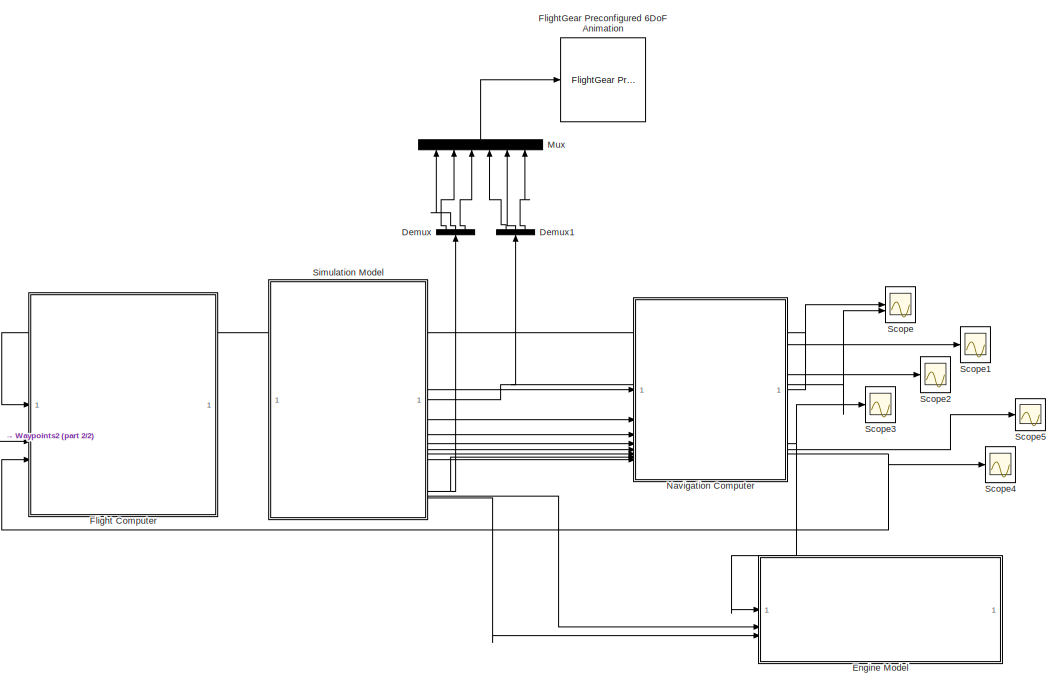
[diagram: root canvas - part 1/2, center side, full height]
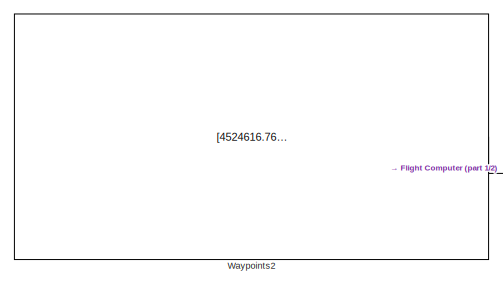
[diagram: root canvas - part 2/2, middle left region]
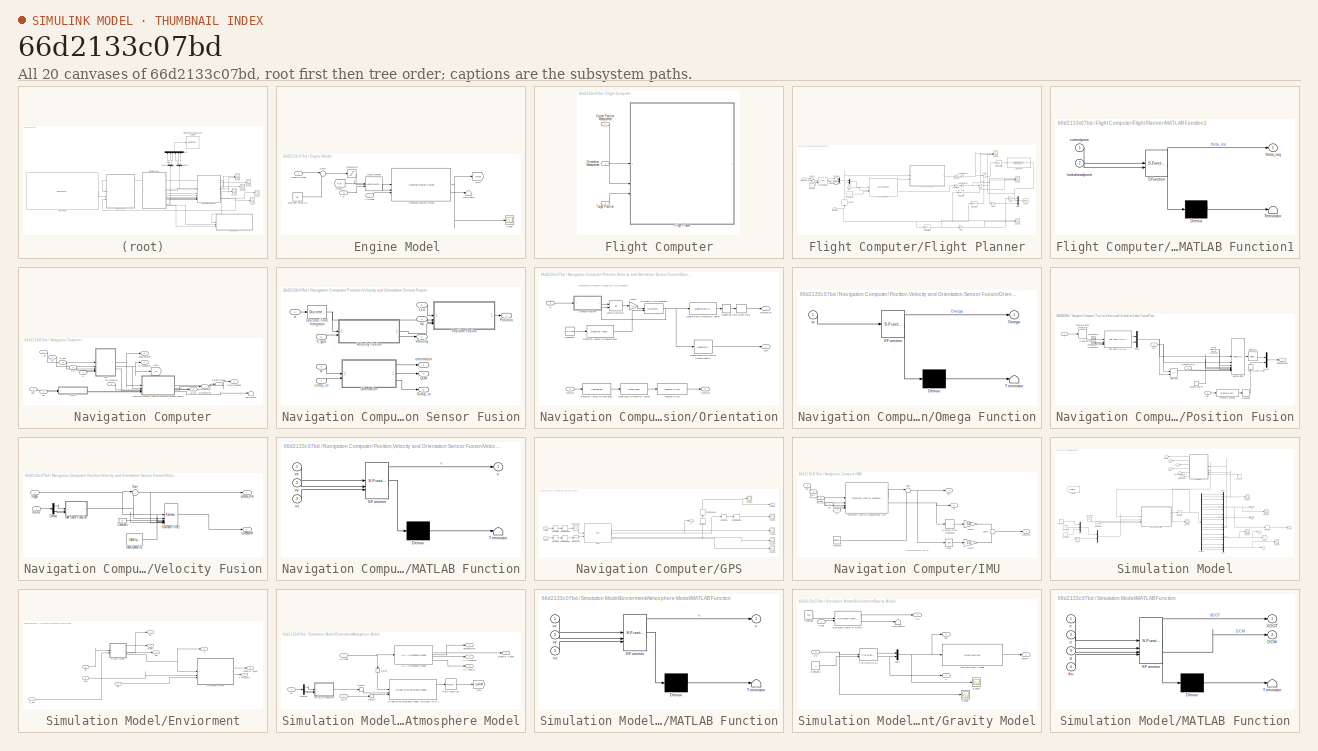
[diagram: thumbnail index - all 20 canvases of the model, root first then tree order]
MODEL slx_66d2133c07bd
KIND model
CONFIG AbsTol = auto
CONFIG EnableMultiTasking = off
CONFIG FixedStep = auto
CONFIG MaxStep = auto
CONFIG MinStep = auto
CONFIG RelTol = 1e-3
CONFIG SampleTimeConstraint = Unconstrained
CONFIG SolverName = VariableStepAuto
CONFIG StartTime = 0.0
CONFIG StopTime = 100
BLOCK [Demux] Demux
  NameLocation = right
  Outputs = 3
BLOCK [Demux] Demux1
  NameLocation = right
  Outputs = 3
BLOCK [SubSystem] Engine Model 
BLOCK [Inport] Engine Model /Altitude
  Port = 2
BLOCK [Constant] Engine Model /Desired Velocity2
  Value = 60
BLOCK [From] Engine Model /From1
  GotoTag = V_e
  TagVisibility = global
BLOCK [Goto] Engine Model /Goto
  GotoTag = thrust
  TagVisibility = global
BLOCK [Reference] Engine Model /Mach Number  REF=aerolibasang/Mach Number
  SourceBlock = aerolibasang/Mach Number
  SourceType = Mach Number
BLOCK [Saturate] Engine Model /Saturation
  LowerLimit = 0
  UpperLimit = 1
BLOCK [Scope] Engine Model /Scope
  Floating = off
  NumInputPorts = 1
  ScopeSpecificationString = Simulink.scopes.TimeScopeBlockCfg('CurrentConfiguration', extmgr.ConfigurationSet(extmgr.Configuration('Core','General UI',true),extmgr.Configuration('Core','Source UI',true),extmgr.Configuration('Sources','WiredSimulink',true,'DataLoggingVariableName','ScopeData2'),extmgr.Configuration('Visuals','Time Domain',true,'SerializedDisplays',{struct('MinYLimReal','-44.47959','MaxYLimReal','400.33182','Y...<+1454ch>
BLOCK [Sum] Engine Model /Sum2
  Inputs = |-+
BLOCK [Terminator] Engine Model /Terminator
BLOCK [Reference] Engine Model /Turbofan Engine System  REF=aerolibpropulsion2/Turbofan Engine System
  SourceBlock = aerolibpropulsion2/Turbofan Engine System
  SourceType = Turbofan Engine System
BLOCK [Inport] Engine Model /VelocityFused
BLOCK [Inport] Engine Model /a
  Port = 3
BLOCK [SubSystem] Flight Computer
BLOCK [Inport] Flight Computer/Current Position Measurement
  Port = 3
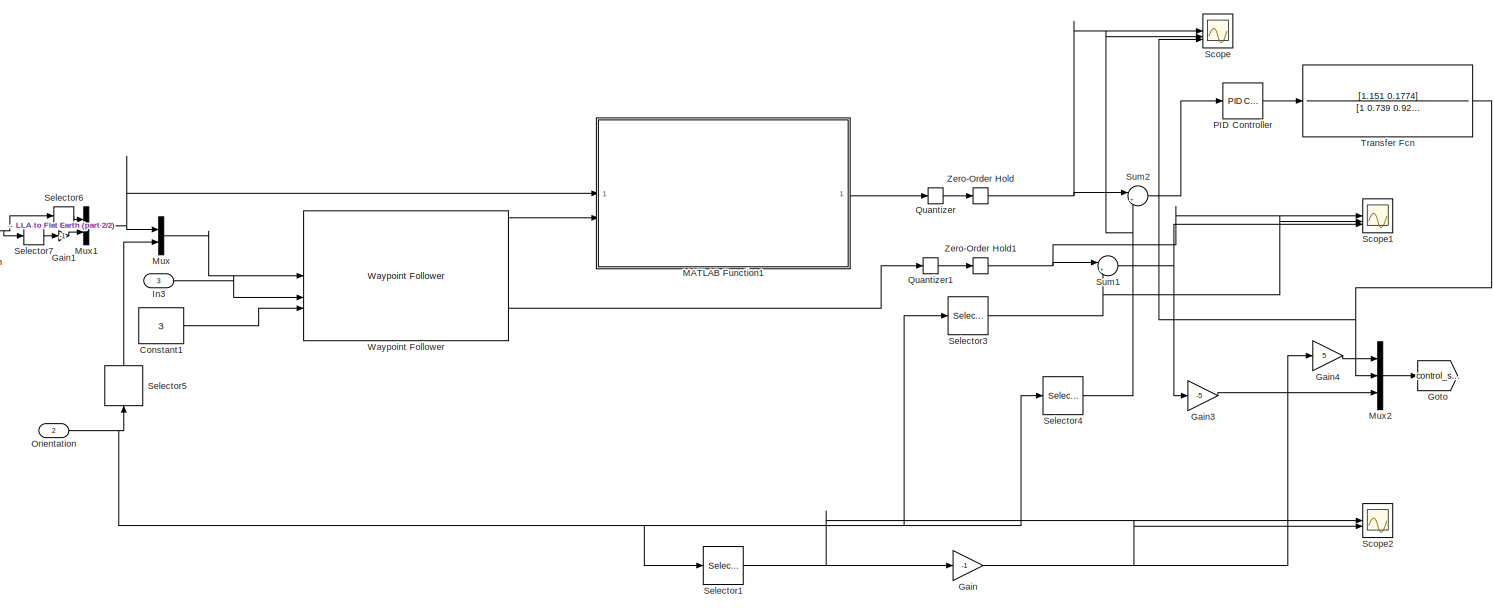
[diagram: Flight Computer/Flight Planner - part 1/2, most of the canvas]
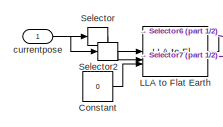
[diagram: Flight Computer/Flight Planner - part 2/2, middle left region]
BLOCK [SubSystem] Flight Computer/Flight Planner
BLOCK [Constant] Flight Computer/Flight Planner/Constant
  Value = 0
BLOCK [Constant] Flight Computer/Flight Planner/Constant1
  Value = 3
BLOCK [Gain] Flight Computer/Flight Planner/Gain
  Gain = -1
BLOCK [Gain] Flight Computer/Flight Planner/Gain1
  Gain = -1
BLOCK [Gain] Flight Computer/Flight Planner/Gain3
  Gain = -5
BLOCK [Gain] Flight Computer/Flight Planner/Gain4
  Gain = 5
BLOCK [Goto] Flight Computer/Flight Planner/Goto
  GotoTag = control_surfaces
  TagVisibility = global
BLOCK [Inport] Flight Computer/Flight Planner/In3
  Port = 3
BLOCK [Reference] Flight Computer/Flight Planner/LLA to Flat Earth  REF=aerolibtransform2/LLA to Flat Earth
  SourceBlock = aerolibtransform2/LLA to Flat Earth
  SourceType = LLA to Flat Earth
BLOCK [SubSystem] Flight Computer/Flight Planner/MATLAB Function1
  ErrorFcn = Stateflow.Translate.translate
  LibrarySourceBlock = simulink/User-Defined\nFunctions/MATLAB Function
  PermitHierarchicalResolution = ExplicitOnly
  SFBlockType = MATLAB Function
  TreatAsAtomicUnit = on
BLOCK [Demux] Flight Computer/Flight Planner/MATLAB Function1/ Demux 
  Outputs = 1
BLOCK [S-Function] Flight Computer/Flight Planner/MATLAB Function1/ SFunction 
  EnableBusSupport = on
  FunctionName = sf_sfun
  PortCounts = [2 2]
  SFcnIsStateOwnerBlock = off
  SFunctionDeploymentMode = off
  Tag = Stateflow S-Function 8
BLOCK [Terminator] Flight Computer/Flight Planner/MATLAB Function1/ Terminator 
BLOCK [Inport] Flight Computer/Flight Planner/MATLAB Function1/currentpose
BLOCK [Inport] Flight Computer/Flight Planner/MATLAB Function1/lookaheadpoint
  Port = 2
BLOCK [Outport] Flight Computer/Flight Planner/MATLAB Function1/theta_req
BLOCK [Mux] Flight Computer/Flight Planner/Mux
  DisplayOption = bar
  Inputs = 2
BLOCK [Mux] Flight Computer/Flight Planner/Mux1
  DisplayOption = bar
  Inputs = 2
BLOCK [Mux] Flight Computer/Flight Planner/Mux2
  DisplayOption = bar
  Inputs = 3
BLOCK [Inport] Flight Computer/Flight Planner/Orientation
  Port = 2
BLOCK [Reference] Flight Computer/Flight Planner/PID Controller  REF=slpidlib/PID Controller
  LibrarySourceBlock = simulink/Continuous/PID Controller
  SourceBlock = slpidlib/PID Controller
  SourceType = PID 1dof
BLOCK [Quantizer] Flight Computer/Flight Planner/Quantizer
  QuantizationInterval = 0.01
BLOCK [Quantizer] Flight Computer/Flight Planner/Quantizer1
  QuantizationInterval = 0.01
BLOCK [Scope] Flight Computer/Flight Planner/Scope
  Floating = off
  NumInputPorts = 3
  ScopeSpecificationString = Simulink.scopes.TimeScopeBlockCfg('CurrentConfiguration', extmgr.ConfigurationSet(extmgr.Configuration('Core','General UI',true),extmgr.Configuration('Core','Source UI',true),extmgr.Configuration('Sources','WiredSimulink',true,'DataLoggingVariableName','ScopeData7'),extmgr.Configuration('Visuals','Time Domain',true,'SerializedDisplays',{struct('MinYLimReal','-6.62753','MaxYLimReal','1.08084','YLab...<+1542ch>
BLOCK [Scope] Flight Computer/Flight Planner/Scope1
  Floating = off
  NumInputPorts = 3
  ScopeSpecificationString = Simulink.scopes.TimeScopeBlockCfg('CurrentConfiguration', extmgr.ConfigurationSet(extmgr.Configuration('Core','General UI',true),extmgr.Configuration('Core','Source UI',true),extmgr.Configuration('Sources','WiredSimulink',true,'DataLoggingVariableName','ScopeData8'),extmgr.Configuration('Visuals','Time Domain',true,'SerializedDisplays',{struct('MinYLimReal','-1.2','MaxYLimReal','2.4','YLabelReal',...<+1496ch>
BLOCK [Scope] Flight Computer/Flight Planner/Scope2
  Floating = off
  NumInputPorts = 3
  ScopeSpecificationString = Simulink.scopes.TimeScopeBlockCfg('CurrentConfiguration', extmgr.ConfigurationSet(extmgr.Configuration('Core','General UI',true),extmgr.Configuration('Core','Source UI',true),extmgr.Configuration('Sources','WiredSimulink',true,'DataLoggingVariableName','ScopeData9'),extmgr.Configuration('Visuals','Time Domain',true,'SerializedDisplays',{struct('MinYLimReal','-3.925','MaxYLimReal','3.925','YLabelRe...<+1498ch>
BLOCK [Selector] Flight Computer/Flight Planner/Selector
  IndexOptions = Index vector (dialog)
  Indices = [1 2]
  InputPortWidth = 3
  OutputSizes = 1
BLOCK [Selector] Flight Computer/Flight Planner/Selector1
  IndexOptions = Index vector (dialog)
  Indices = [1]
  InputPortWidth = 3
  OutputSizes = 1
BLOCK [Selector] Flight Computer/Flight Planner/Selector2
  IndexOptions = Index vector (dialog)
  Indices = [3]
  InputPortWidth = 3
  OutputSizes = 1
BLOCK [Selector] Flight Computer/Flight Planner/Selector3
  IndexOptions = Index vector (dialog)
  Indices = [3]
  InputPortWidth = 3
  OutputSizes = 1
BLOCK [Selector] Flight Computer/Flight Planner/Selector4
  IndexOptions = Index vector (dialog)
  Indices = [2]
  InputPortWidth = 3
  OutputSizes = 1
BLOCK [Selector] Flight Computer/Flight Planner/Selector5
  IndexOptions = Index vector (dialog)
  Indices = [3]
  InputPortWidth = 3
  NameLocation = right
  OutputSizes = 1
BLOCK [Selector] Flight Computer/Flight Planner/Selector6
  IndexOptions = Index vector (dialog)
  Indices = [1 2]
  InputPortWidth = 3
  OutputSizes = 1
BLOCK [Selector] Flight Computer/Flight Planner/Selector7
  IndexOptions = Index vector (dialog)
  Indices = [3]
  InputPortWidth = 3
  OutputSizes = 1
BLOCK [Sum] Flight Computer/Flight Planner/Sum1
  Inputs = |+-
BLOCK [Sum] Flight Computer/Flight Planner/Sum2
  Inputs = |+-
BLOCK [TransferFcn] Flight Computer/Flight Planner/Transfer Fcn
  Denominator = [1 0.739 0.921 0]
  Numerator = [1.151 0.1774]
BLOCK [Reference] Flight Computer/Flight Planner/Waypoint Follower  REF=uavalgslib/Waypoint Follower
  SourceBlock = uavalgslib/Waypoint Follower
  SourceType = uav.sluav.internal.system.WaypointFollower
BLOCK [ZeroOrderHold] Flight Computer/Flight Planner/Zero-Order Hold
  SampleTime = -1
BLOCK [ZeroOrderHold] Flight Computer/Flight Planner/Zero-Order Hold1
  SampleTime = -1
BLOCK [Inport] Flight Computer/Flight Planner/currentpose
BLOCK [Inport] Flight Computer/Orientation Measurement
BLOCK [Inport] Flight Computer/Target Position 
  Port = 2
BLOCK [Reference] FlightGear Preconfigured 6DoF Animation  REF=aerolibfltsims/FlightGear
Preconfigured
6DoF Animation
  SourceBlock = aerolibfltsims/FlightGear\nPreconfigured\n6DoF Animation
  SourceType = FlightGearQuick6DoFAnimation
BLOCK [Mux] Mux
  DisplayOption = bar
  Inputs = 6
  NameLocation = right
BLOCK [SubSystem] Navigation Computer
BLOCK [SubSystem] Navigation Computer/ Position,Velocity and Orientation Sensor Fusion
BLOCK [Outport] Navigation Computer/ Position,Velocity and Orientation Sensor Fusion/Comp_or
  Port = 5
BLOCK [Outport] Navigation Computer/ Position,Velocity and Orientation Sensor Fusion/DCM
  Port = 4
BLOCK [DiscreteIntegrator] Navigation Computer/ Position,Velocity and Orientation Sensor Fusion/Discrete-Time Integrator
  ICPrevOutput = DiscIntNeverNeededParam
  ICPrevScaledInput = DiscIntNeverNeededParam
  InitialConditionSetting = Auto
  SampleTime = -1
BLOCK [Inport] Navigation Computer/ Position,Velocity and Orientation Sensor Fusion/LLa
  NameLocation = top
  Port = 5
BLOCK [SubSystem] Navigation Computer/ Position,Velocity and Orientation Sensor Fusion/Orientation
BLOCK [Outport] Navigation Computer/ Position,Velocity and Orientation Sensor Fusion/Orientation/Comp_or
  Port = 3
BLOCK [Constant] Navigation Computer/ Position,Velocity and Orientation Sensor Fusion/Orientation/Constant1
  Value = [0 0 1.0996]
BLOCK [DiscreteIntegrator] Navigation Computer/ Position,Velocity and Orientation Sensor Fusion/Orientation/Discrete-Time Integrator
  ICPrevOutput = DiscIntNeverNeededParam
  ICPrevScaledInput = DiscIntNeverNeededParam
  InitialConditionSetting = Auto
  InitialConditionSource = external
  SampleTime = 0.01
BLOCK [Gain] Navigation Computer/ Position,Velocity and Orientation Sensor Fusion/Orientation/Gain1
  Gain = 0.5
BLOCK [Product] Navigation Computer/ Position,Velocity and Orientation Sensor Fusion/Orientation/Matrix Multiply
  Multiplication = Matrix(*)
BLOCK [Reference] Navigation Computer/ Position,Velocity and Orientation Sensor Fusion/Orientation/Median Filter  REF=dspstat3/Median
Filter
  LibrarySourceBlock = dspfdesign/Median\nFilter
  SourceBlock = dspstat3/Median\nFilter
  SourceType = dsp.simulink.MedianFilter
BLOCK [SubSystem] Navigation Computer/ Position,Velocity and Orientation Sensor Fusion/Orientation/Omega Function
  ErrorFcn = Stateflow.Translate.translate
  PermitHierarchicalResolution = ExplicitOnly
  SFBlockType = MATLAB Function
  TreatAsAtomicUnit = on
BLOCK [Demux] Navigation Computer/ Position,Velocity and Orientation Sensor Fusion/Orientation/Omega Function/ Demux 
  Outputs = 1
BLOCK [S-Function] Navigation Computer/ Position,Velocity and Orientation Sensor Fusion/Orientation/Omega Function/ SFunction 
  EnableBusSupport = on
  FunctionName = sf_sfun
  PortCounts = [1 2]
  SFcnIsStateOwnerBlock = off
  SFunctionDeploymentMode = off
  Tag = Stateflow S-Function 6
BLOCK [Terminator] Navigation Computer/ Position,Velocity and Orientation Sensor Fusion/Orientation/Omega Function/ Terminator 
BLOCK [Outport] Navigation Computer/ Position,Velocity and Orientation Sensor Fusion/Orientation/Omega Function/Omega
BLOCK [Inport] Navigation Computer/ Position,Velocity and Orientation Sensor Fusion/Orientation/Omega Function/w
BLOCK [Quantizer] Navigation Computer/ Position,Velocity and Orientation Sensor Fusion/Orientation/Quantizer
  LinearizeAsGain = off
  QuantizationInterval = 0.01
BLOCK [Reference] Navigation Computer/ Position,Velocity and Orientation Sensor Fusion/Orientation/Quaternions to Direction Cosine Matrix  REF=sharedtransform/Quaternions to 
Direction Cosine Matrix
  SourceBlock = sharedtransform/Quaternions to \nDirection Cosine Matrix
  SourceType = Quaternion2DCM
BLOCK [Reference] Navigation Computer/ Position,Velocity and Orientation Sensor Fusion/Orientation/Quaternions to Rotation Angles  REF=sharedtransform/Quaternions to Rotation Angles
  AttributesFormatString = Rotation Order: %<rotationOrder>
  SourceBlock = sharedtransform/Quaternions to Rotation Angles
  SourceType = Quat2Ang
BLOCK [Rod2Angle] Navigation Computer/ Position,Velocity and Orientation Sensor Fusion/Orientation/Rodrigues to Rotation Angles
  AttributesFormatString = Rotation Order: %<rotationOrder>
  rotationOrder = XYZ
BLOCK [Reference] Navigation Computer/ Position,Velocity and Orientation Sensor Fusion/Orientation/Rotation Angles to Quaternions1  REF=sharedtransform/Rotation Angles to Quaternions
  AttributesFormatString = Rotation Order: %<rotationOrder>
  SourceBlock = sharedtransform/Rotation Angles to Quaternions
  SourceType = Ang2Quat
BLOCK [Angle2Rod] Navigation Computer/ Position,Velocity and Orientation Sensor Fusion/Orientation/Rotation Angles to Rodrigues
  AttributesFormatString = Rotation Order: %<rotationOrder>
  rotationOrder = XYZ
BLOCK [ZeroOrderHold] Navigation Computer/ Position,Velocity and Orientation Sensor Fusion/Orientation/Zero-Order Hold
  SampleTime = -1
BLOCK [Inport] Navigation Computer/ Position,Velocity and Orientation Sensor Fusion/Orientation/comp_or
  Port = 2
BLOCK [Outport] Navigation Computer/ Position,Velocity and Orientation Sensor Fusion/Orientation/dcm
  Port = 2
BLOCK [Outport] Navigation Computer/ Position,Velocity and Orientation Sensor Fusion/Orientation/orientation
BLOCK [Inport] Navigation Computer/ Position,Velocity and Orientation Sensor Fusion/Orientation/w
BLOCK [Outport] Navigation Computer/ Position,Velocity and Orientation Sensor Fusion/Position
BLOCK [SubSystem] Navigation Computer/ Position,Velocity and Orientation Sensor Fusion/Position Fusion
BLOCK [Constant] Navigation Computer/ Position,Velocity and Orientation Sensor Fusion/Position Fusion/Constant
  SampleTime = 0.01
  Value = [0 0 0 ; 0 0 0 ; 0 0 0 ]
BLOCK [Constant] Navigation Computer/ Position,Velocity and Orientation Sensor Fusion/Position Fusion/Constant4
  Value = [40.892667 29.293167]
BLOCK [Constant] Navigation Computer/ Position,Velocity and Orientation Sensor Fusion/Position Fusion/Constant5
  Value = 0
BLOCK [Constant] Navigation Computer/ Position,Velocity and Orientation Sensor Fusion/Position Fusion/Constant6
  Value = 1.099557428863
BLOCK [DiscreteIntegrator] Navigation Computer/ Position,Velocity and Orientation Sensor Fusion/Position Fusion/Discrete-Time Integrator
  ICPrevOutput = DiscIntNeverNeededParam
  ICPrevScaledInput = DiscIntNeverNeededParam
  InitialConditionSetting = Auto
  SampleTime = -1
BLOCK [Reference] Navigation Computer/ Position,Velocity and Orientation Sensor Fusion/Position Fusion/Flat Earth to LLA1  REF=aerolibtransform2/Flat Earth to LLA
  SourceBlock = aerolibtransform2/Flat Earth to LLA
  SourceType = Flat Earth to LLA
BLOCK [IdentityMatrix] Navigation Computer/ Position,Velocity and Orientation Sensor Fusion/Position Fusion/IdentityMatrix
  OutputDimensions = 3
  SampleTime = 0.01
BLOCK [Reference] Navigation Computer/ Position,Velocity and Orientation Sensor Fusion/Position Fusion/Kalman Filter  REF=ctrlSharedLib/Kalman Filter
  SourceBlock = ctrlSharedLib/Kalman Filter
  SourceType = ctrlKalmanFilter
BLOCK [Inport] Navigation Computer/ Position,Velocity and Orientation Sensor Fusion/Position Fusion/LLa
BLOCK [Mux] Navigation Computer/ Position,Velocity and Orientation Sensor Fusion/Position Fusion/Mux1
  DisplayOption = bar
  Inputs = 2
BLOCK [Mux] Navigation Computer/ Position,Velocity and Orientation Sensor Fusion/Position Fusion/Mux2
  DisplayOption = bar
  Inputs = 2
BLOCK [Reference] Navigation Computer/ Position,Velocity and Orientation Sensor Fusion/Position Fusion/Pressure Altitude  REF=aerolibatmos2/Pressure Altitude
  SourceBlock = aerolibatmos2/Pressure Altitude
  SourceType = Pressure Altitude
BLOCK [Inport] Navigation Computer/ Position,Velocity and Orientation Sensor Fusion/Position Fusion/Process_error
  NameLocation = top
  Port = 4
BLOCK [Quantizer] Navigation Computer/ Position,Velocity and Orientation Sensor Fusion/Position Fusion/Quantizer
  QuantizationInterval = 0.01
BLOCK [Selector] Navigation Computer/ Position,Velocity and Orientation Sensor Fusion/Position Fusion/Selector5
  IndexOptions = Index vector (dialog)
  Indices = [1 2]
  InputPortWidth = 3
  OutputSizes = 1
BLOCK [Sum] Navigation Computer/ Position,Velocity and Orientation Sensor Fusion/Position Fusion/Subtract
  IconShape = rectangular
  Inputs = +-
BLOCK [Inport] Navigation Computer/ Position,Velocity and Orientation Sensor Fusion/Position Fusion/V
  Port = 2
BLOCK [ZeroOrderHold] Navigation Computer/ Position,Velocity and Orientation Sensor Fusion/Position Fusion/Zero-Order Hold
  NameLocation = right
  SampleTime = -1
BLOCK [Inport] Navigation Computer/ Position,Velocity and Orientation Sensor Fusion/Position Fusion/ap
  Port = 3
BLOCK [Outport] Navigation Computer/ Position,Velocity and Orientation Sensor Fusion/Position Fusion/positionFused
BLOCK [Inport] Navigation Computer/ Position,Velocity and Orientation Sensor Fusion/V_gps
  Port = 6
BLOCK [Outport] Navigation Computer/ Position,Velocity and Orientation Sensor Fusion/Velocity
  Port = 2
BLOCK [SubSystem] Navigation Computer/ Position,Velocity and Orientation Sensor Fusion/Velocity Fusion
BLOCK [Constant] Navigation Computer/ Position,Velocity and Orientation Sensor Fusion/Velocity Fusion/Constant1
  Value = 0
BLOCK [Demux] Navigation Computer/ Position,Velocity and Orientation Sensor Fusion/Velocity Fusion/Demux
  Outputs = 3
BLOCK [IdentityMatrix] Navigation Computer/ Position,Velocity and Orientation Sensor Fusion/Velocity Fusion/IdentityMatrix1
  OutputDimensions = 1
  SampleTime = 0.01
BLOCK [Reference] Navigation Computer/ Position,Velocity and Orientation Sensor Fusion/Velocity Fusion/Kalman Filter1  REF=ctrlSharedLib/Kalman Filter
  SourceBlock = ctrlSharedLib/Kalman Filter
  SourceType = ctrlKalmanFilter
BLOCK [SubSystem] Navigation Computer/ Position,Velocity and Orientation Sensor Fusion/Velocity Fusion/MATLAB Function
  ErrorFcn = Stateflow.Translate.translate
  PermitHierarchicalResolution = ExplicitOnly
  SFBlockType = MATLAB Function
  TreatAsAtomicUnit = on
BLOCK [Demux] Navigation Computer/ Position,Velocity and Orientation Sensor Fusion/Velocity Fusion/MATLAB Function/ Demux 
  Outputs = 1
BLOCK [S-Function] Navigation Computer/ Position,Velocity and Orientation Sensor Fusion/Velocity Fusion/MATLAB Function/ SFunction 
  EnableBusSupport = on
  FunctionName = sf_sfun
  PortCounts = [3 2]
  SFcnIsStateOwnerBlock = off
  SFunctionDeploymentMode = off
  Tag = Stateflow S-Function 2
BLOCK [Terminator] Navigation Computer/ Position,Velocity and Orientation Sensor Fusion/Velocity Fusion/MATLAB Function/ Terminator 
BLOCK [Outport] Navigation Computer/ Position,Velocity and Orientation Sensor Fusion/Velocity Fusion/MATLAB Function/v
BLOCK [Inport] Navigation Computer/ Position,Velocity and Orientation Sensor Fusion/Velocity Fusion/MATLAB Function/vx
BLOCK [Inport] Navigation Computer/ Position,Velocity and Orientation Sensor Fusion/Velocity Fusion/MATLAB Function/vy
  Port = 2
BLOCK [Inport] Navigation Computer/ Position,Velocity and Orientation Sensor Fusion/Velocity Fusion/MATLAB Function/vz
  Port = 3
BLOCK [Sum] Navigation Computer/ Position,Velocity and Orientation Sensor Fusion/Velocity Fusion/Sum
  Inputs = |+-
BLOCK [Inport] Navigation Computer/ Position,Velocity and Orientation Sensor Fusion/Velocity Fusion/hizgps
  Port = 2
BLOCK [Inport] Navigation Computer/ Position,Velocity and Orientation Sensor Fusion/Velocity Fusion/hizimu
BLOCK [Outport] Navigation Computer/ Position,Velocity and Orientation Sensor Fusion/Velocity Fusion/process_error
BLOCK [Outport] Navigation Computer/ Position,Velocity and Orientation Sensor Fusion/Velocity Fusion/v_measured
  Port = 2
BLOCK [Inport] Navigation Computer/ Position,Velocity and Orientation Sensor Fusion/a
BLOCK [Inport] Navigation Computer/ Position,Velocity and Orientation Sensor Fusion/ap
  Port = 3
BLOCK [Inport] Navigation Computer/ Position,Velocity and Orientation Sensor Fusion/comp_or
  Port = 4
BLOCK [Outport] Navigation Computer/ Position,Velocity and Orientation Sensor Fusion/orientation
  NameLocation = top
  Port = 3
BLOCK [Inport] Navigation Computer/ Position,Velocity and Orientation Sensor Fusion/w
  Port = 2
BLOCK [Inport] Navigation Computer/A_b
  Port = 4
BLOCK [Inport] Navigation Computer/CG
  Port = 5
BLOCK [Outport] Navigation Computer/DCM
  Port = 5
BLOCK [SubSystem] Navigation Computer/GPS
BLOCK [Reference] Navigation Computer/GPS/GPS  REF=sensorgpslib/GPS
  SourceBlock = sensorgpslib/GPS
  SourceType = fusion.internal.simulink.gpsSensor
BLOCK [Outport] Navigation Computer/GPS/LLA
BLOCK [Inport] Navigation Computer/GPS/Position
BLOCK [Quantizer] Navigation Computer/GPS/Quantizer1
  NameLocation = right
  QuantizationInterval = 0.01
BLOCK [Quantizer] Navigation Computer/GPS/Quantizer2
  QuantizationInterval = 0.01
BLOCK [Quantizer] Navigation Computer/GPS/Quantizer3
  QuantizationInterval = 0.01
BLOCK [Quantizer] Navigation Computer/GPS/Quantizer4
  QuantizationInterval = 0.01
BLOCK [Scope] Navigation Computer/GPS/Scope
  Floating = off
  NumInputPorts = 1
  ScopeSpecificationString = Simulink.scopes.TimeScopeBlockCfg('CurrentConfiguration', extmgr.ConfigurationSet(extmgr.Configuration('Core','General UI',true),extmgr.Configuration('Core','Source UI',true),extmgr.Configuration('Sources','WiredSimulink',true,'DataLoggingVariableName','ScopeData6'),extmgr.Configuration('Visuals','Time Domain',true,'SerializedDisplays',{struct('MinYLimReal','21.70125','MaxYLimReal','97.58875','YLa...<+1469ch>
BLOCK [Scope] Navigation Computer/GPS/Scope1
  Floating = off
  NumInputPorts = 1
  ScopeSpecificationString = Simulink.scopes.TimeScopeBlockCfg('CurrentConfiguration', extmgr.ConfigurationSet(extmgr.Configuration('Core','General UI',true),extmgr.Configuration('Core','Source UI',true),extmgr.Configuration('Sources','WiredSimulink',true,'DataLoggingVariableName','ScopeData7'),extmgr.Configuration('Visuals','Time Domain',true,'SerializedDisplays',{struct('MinYLimReal','-51.8175','MaxYLimReal','128.7575','YLa...<+1434ch>
BLOCK [Scope] Navigation Computer/GPS/Scope2
  Floating = off
  NumInputPorts = 1
  ScopeSpecificationString = Simulink.scopes.TimeScopeBlockCfg('CurrentConfiguration', extmgr.ConfigurationSet(extmgr.Configuration('Core','General UI',true),extmgr.Configuration('Core','Source UI',true),extmgr.Configuration('Sources','WiredSimulink',true,'DataLoggingVariableName','ScopeData1'),extmgr.Configuration('Visuals','Time Domain',true,'SerializedDisplays',{struct('MinYLimReal','-14.06442','MaxYLimReal','126.57978','Y...<+1399ch>
BLOCK [Scope] Navigation Computer/GPS/Scope3
  Floating = off
  NumInputPorts = 1
  ScopeSpecificationString = Simulink.scopes.TimeScopeBlockCfg('CurrentConfiguration', extmgr.ConfigurationSet(extmgr.Configuration('Core','General UI',true),extmgr.Configuration('Core','Source UI',true),extmgr.Configuration('Sources','WiredSimulink',true,'DataLoggingVariableName','ScopeData2'),extmgr.Configuration('Visuals','Time Domain',true,'SerializedDisplays',{struct('MinYLimReal','-44.96983','MaxYLimReal','404.72844','Y...<+1418ch>
BLOCK [Scope] Navigation Computer/GPS/Scope4
  Floating = off
  NumInputPorts = 1
  ScopeSpecificationString = Simulink.scopes.TimeScopeBlockCfg('CurrentConfiguration', extmgr.ConfigurationSet(extmgr.Configuration('Core','General UI',true),extmgr.Configuration('Core','Source UI',true),extmgr.Configuration('Sources','WiredSimulink',true,'DataLoggingVariableName','ScopeData2'),extmgr.Configuration('Visuals','Time Domain',true,'SerializedDisplays',{struct('MinYLimReal','-0.17','MaxYLimReal','1.53','YLabelReal...<+1401ch>
BLOCK [Outport] Navigation Computer/GPS/Speed
  Port = 2
BLOCK [Math] Navigation Computer/GPS/Transpose1
  Operator = transpose
BLOCK [Math] Navigation Computer/GPS/Transpose4
  Operator = transpose
BLOCK [Inport] Navigation Computer/GPS/Velocity
  Port = 2
BLOCK [ZeroOrderHold] Navigation Computer/GPS/Zero-Order Hold1
  NameLocation = right
  SampleTime = -1
BLOCK [ZeroOrderHold] Navigation Computer/GPS/Zero-Order Hold2
  SampleTime = -1
BLOCK [ZeroOrderHold] Navigation Computer/GPS/Zero-Order Hold3
  SampleTime = -1
BLOCK [ZeroOrderHold] Navigation Computer/GPS/Zero-Order Hold4
  SampleTime = -1
BLOCK [Goto] Navigation Computer/Goto
  GotoTag = w
  TagVisibility = global
BLOCK [SubSystem] Navigation Computer/IMU
BLOCK [Trigonometry] Navigation Computer/IMU/Atan1
  Operator = atan
BLOCK [Constant] Navigation Computer/IMU/Constant
  Value = [0;0;9.81]
BLOCK [DiscreteIntegrator] Navigation Computer/IMU/Discrete-Time Integrator
  ICPrevOutput = DiscIntNeverNeededParam
  ICPrevScaledInput = DiscIntNeverNeededParam
  InitialCondition = [0 0 1.0996\n]
  InitialConditionSetting = Auto
  SampleTime = -1
BLOCK [Gain] Navigation Computer/IMU/Gain3
  Gain = 0.25
BLOCK [Gain] Navigation Computer/IMU/Gain4
  Gain = 0.75
BLOCK [Sum] Navigation Computer/IMU/Sum
  Inputs = |++
BLOCK [Sum] Navigation Computer/IMU/Sum3
BLOCK [Reference] Navigation Computer/IMU/Three-axis Inertial Measurement Unit  REF=aerolibnav/Three-axis Inertial
Measurement Unit
  SourceBlock = aerolibnav/Three-axis Inertial\nMeasurement Unit
  SourceType = Three-axis Inertial Measurement Unit
BLOCK [Inport] Navigation Computer/IMU/ab
BLOCK [Outport] Navigation Computer/IMU/acc
BLOCK [Inport] Navigation Computer/IMU/cg
  Port = 4
BLOCK [Outport] Navigation Computer/IMU/comp_or
  Port = 3
BLOCK [Inport] Navigation Computer/IMU/g
  Port = 5
BLOCK [Outport] Navigation Computer/IMU/w
  Port = 2
BLOCK [Inport] Navigation Computer/IMU/wdot
  Port = 3
BLOCK [Inport] Navigation Computer/IMU/win
  Port = 2
BLOCK [Outport] Navigation Computer/Orientation
BLOCK [Outport] Navigation Computer/PositionFused
  NameLocation = top
  Port = 6
BLOCK [Terminator] Navigation Computer/Terminator
BLOCK [Outport] Navigation Computer/VelocityFused
  Port = 4
BLOCK [Outport] Navigation Computer/accelometer
  NameLocation = top
  Port = 2
BLOCK [Inport] Navigation Computer/air_pressure
  NameLocation = top
  Port = 8
BLOCK [Inport] Navigation Computer/g
  Port = 6
BLOCK [Inport] Navigation Computer/pos
  NameLocation = top
  Port = 7
BLOCK [Inport] Navigation Computer/vel
BLOCK [Inport] Navigation Computer/w
  Port = 2
BLOCK [Inport] Navigation Computer/w_dot
  Port = 3
BLOCK [Outport] Navigation Computer/w_measured
  Port = 3
BLOCK [Scope] Scope
  Floating = off
  NumInputPorts = 2
  ScopeSpecificationString = Simulink.scopes.TimeScopeBlockCfg('CurrentConfiguration', extmgr.ConfigurationSet(extmgr.Configuration('Core','General UI',true),extmgr.Configuration('Core','Source UI',true),extmgr.Configuration('Sources','WiredSimulink',true,'DataLoggingVariableName','ScopeData1'),extmgr.Configuration('Visuals','Time Domain',true,'SerializedDisplays',{struct('MinYLimReal','-4.2949','MaxYLimReal','7.25411','YLabe...<+1784ch>
BLOCK [Scope] Scope1
  Floating = off
  NumInputPorts = 1
  ScopeSpecificationString = Simulink.scopes.TimeScopeBlockCfg('CurrentConfiguration', extmgr.ConfigurationSet(extmgr.Configuration('Core','General UI',true),extmgr.Configuration('Core','Source UI',true),extmgr.Configuration('Sources','WiredSimulink',true,'DataLoggingVariableName','ScopeData2'),extmgr.Configuration('Visuals','Time Domain',true,'SerializedDisplays',{struct('MinYLimReal','-2.1496','MaxYLimReal','8.11049','YLabe...<+1642ch>
BLOCK [Scope] Scope2
  Floating = off
  NumInputPorts = 1
  ScopeSpecificationString = Simulink.scopes.TimeScopeBlockCfg('CurrentConfiguration', extmgr.ConfigurationSet(extmgr.Configuration('Core','General UI',true),extmgr.Configuration('Core','Source UI',true),extmgr.Configuration('Sources','WiredSimulink',true,'DataLoggingVariableName','ScopeData3'),extmgr.Configuration('Visuals','Time Domain',true,'SerializedDisplays',{struct('MinYLimReal','-0.00772','MaxYLimReal','0.06464','YLab...<+1648ch>
BLOCK [Scope] Scope3
  Floating = off
  NumInputPorts = 1
  ScopeSpecificationString = Simulink.scopes.TimeScopeBlockCfg('CurrentConfiguration', extmgr.ConfigurationSet(extmgr.Configuration('Core','General UI',true),extmgr.Configuration('Core','Source UI',true),extmgr.Configuration('Sources','WiredSimulink',true,'DataLoggingVariableName','ScopeData4'),extmgr.Configuration('Visuals','Time Domain',true,'SerializedDisplays',{struct('MinYLimReal','-14.06375','MaxYLimReal','126.57375','Y...<+1559ch>
BLOCK [Scope] Scope4
  Floating = off
  NumInputPorts = 1
  ScopeSpecificationString = Simulink.scopes.TimeScopeBlockCfg('CurrentConfiguration', extmgr.ConfigurationSet(extmgr.Configuration('Core','General UI',true),extmgr.Configuration('Core','Source UI',true),extmgr.Configuration('Sources','WiredSimulink',true,'DataLoggingVariableName','ScopeData5'),extmgr.Configuration('Visuals','Time Domain',true,'SerializedDisplays',{struct('MinYLimReal','17.48125','MaxYLimReal','135.56875','YL...<+1661ch>
BLOCK [Scope] Scope5
  Floating = off
  NumInputPorts = 1
  ScopeSpecificationString = Simulink.scopes.TimeScopeBlockCfg('CurrentConfiguration', extmgr.ConfigurationSet(extmgr.Configuration('Core','General UI',true),extmgr.Configuration('Core','Source UI',true),extmgr.Configuration('Sources','WiredSimulink',true,'DataLoggingVariableName','ScopeData6'),extmgr.Configuration('Visuals','Time Domain',true,'SerializedDisplays',{struct('MinYLimReal','-1.25','MaxYLimReal','1.25','YLabelReal...<+1572ch>
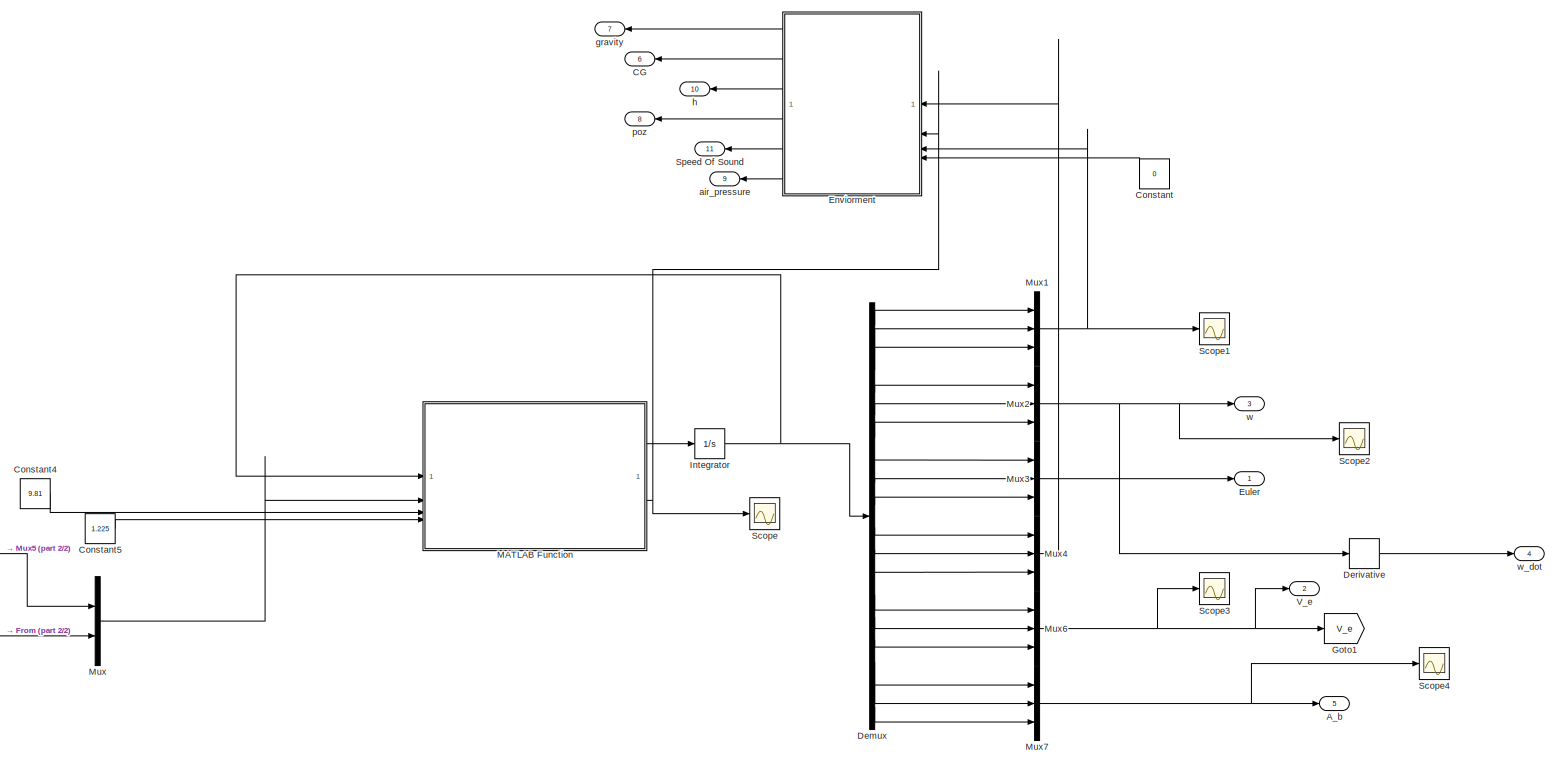
[diagram: Simulation Model - part 1/2, most of the canvas]
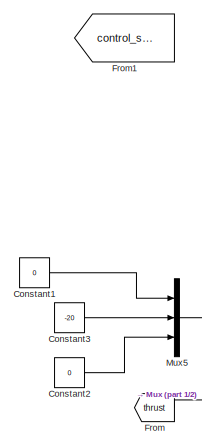
[diagram: Simulation Model - part 2/2, middle left region]
BLOCK [SubSystem] Simulation Model
BLOCK [Outport] Simulation Model/A_b
  Port = 5
BLOCK [Outport] Simulation Model/CG
  Port = 6
BLOCK [Constant] Simulation Model/Constant
  NameLocation = top
  Value = 0
BLOCK [Constant] Simulation Model/Constant1
  Value = 0
BLOCK [Constant] Simulation Model/Constant2
  Value = 0
BLOCK [Constant] Simulation Model/Constant3
  Value = -20
BLOCK [Constant] Simulation Model/Constant4
  Value = 9.81
BLOCK [Constant] Simulation Model/Constant5
  Value = 1.225
BLOCK [Demux] Simulation Model/Demux
  Outputs = 18
BLOCK [Derivative] Simulation Model/Derivative
BLOCK [SubSystem] Simulation Model/Enviorment
  NameLocation = top
BLOCK [Outport] Simulation Model/Enviorment/Air Pressure
  Port = 6
BLOCK [SubSystem] Simulation Model/Enviorment/Atmosphere Model
BLOCK [Outport] Simulation Model/Enviorment/Atmosphere Model/Air Pressure
  Port = 3
BLOCK [Outport] Simulation Model/Enviorment/Atmosphere Model/Air density
  Port = 4
BLOCK [Inport] Simulation Model/Enviorment/Atmosphere Model/Altitude
BLOCK [Inport] Simulation Model/Enviorment/Atmosphere Model/DCM
  Port = 2
BLOCK [Delay] Simulation Model/Enviorment/Atmosphere Model/Delay
  InputPortMap = u0
  NameLocation = left
BLOCK [Delay] Simulation Model/Enviorment/Atmosphere Model/Delay1
  InputPortMap = u0
BLOCK [Delay] Simulation Model/Enviorment/Atmosphere Model/Delay2
  InputPortMap = u0
BLOCK [Demux] Simulation Model/Enviorment/Atmosphere Model/Demux
  Outputs = 3
BLOCK [Reference] Simulation Model/Enviorment/Atmosphere Model/Dryden Wind Turbulence Model (Discrete (+q +r))  REF=aerolibwind2/Dryden Wind Turbulence Model 
(Continuous (+q -r))
  LibrarySourceBlock = aerolibwind2/Dryden Wind Turbulence Model \n(Discrete (+q +r))
  SourceBlock = aerolibwind2/Dryden Wind Turbulence Model \n(Continuous (+q -r))
  SourceType = Wind Turbulence Model
BLOCK [Goto] Simulation Model/Enviorment/Atmosphere Model/Goto
  GotoTag = v_wind
  TagVisibility = global
BLOCK [Reference] Simulation Model/Enviorment/Atmosphere Model/ISA Atmosphere Model  REF=aerolibatmos2/ISA Atmosphere Model
  SourceBlock = aerolibatmos2/ISA Atmosphere Model
  SourceType = International Standard Atmosphere Model
BLOCK [SubSystem] Simulation Model/Enviorment/Atmosphere Model/MATLAB Function
  ErrorFcn = Stateflow.Translate.translate
  PermitHierarchicalResolution = ExplicitOnly
  SFBlockType = MATLAB Function
  TreatAsAtomicUnit = on
BLOCK [Demux] Simulation Model/Enviorment/Atmosphere Model/MATLAB Function/ Demux 
  Outputs = 1
BLOCK [S-Function] Simulation Model/Enviorment/Atmosphere Model/MATLAB Function/ SFunction 
  EnableBusSupport = on
  FunctionName = sf_sfun
  PortCounts = [3 2]
  SFcnIsStateOwnerBlock = off
  SFunctionDeploymentMode = off
  Tag = Stateflow S-Function 5
BLOCK [Terminator] Simulation Model/Enviorment/Atmosphere Model/MATLAB Function/ Terminator 
BLOCK [Outport] Simulation Model/Enviorment/Atmosphere Model/MATLAB Function/v
BLOCK [Inport] Simulation Model/Enviorment/Atmosphere Model/MATLAB Function/vx
BLOCK [Inport] Simulation Model/Enviorment/Atmosphere Model/MATLAB Function/vy
  Port = 2
BLOCK [Inport] Simulation Model/Enviorment/Atmosphere Model/MATLAB Function/vz
  Port = 3
BLOCK [RateTransition] Simulation Model/Enviorment/Atmosphere Model/Rate Transition
  OutPortSampleTime = 0
BLOCK [Outport] Simulation Model/Enviorment/Atmosphere Model/Speed of Sound
  Port = 2
BLOCK [Outport] Simulation Model/Enviorment/Atmosphere Model/Temperature
BLOCK [Inport] Simulation Model/Enviorment/Atmosphere Model/vb
  Port = 3
BLOCK [Outport] Simulation Model/Enviorment/CG
  Port = 2
BLOCK [Inport] Simulation Model/Enviorment/DCM
  Port = 2
BLOCK [SubSystem] Simulation Model/Enviorment/Gravity Model
BLOCK [Outport] Simulation Model/Enviorment/Gravity Model/CG
  Port = 2
BLOCK [Constant] Simulation Model/Enviorment/Gravity Model/Constant
  Value = 815
BLOCK [Constant] Simulation Model/Enviorment/Gravity Model/Constant1
  Value = 0
BLOCK [Reference] Simulation Model/Enviorment/Gravity Model/Estimate Center of Gravity  REF=aerolibbdyn/Estimate
Center of Gravity
  SourceBlock = aerolibbdyn/Estimate\nCenter of Gravity
  SourceType = Estimate Center of Gravity
BLOCK [Reference] Simulation Model/Enviorment/Gravity Model/Flat Earth to LLA  REF=aerolibtransform2/Flat Earth to LLA
  SourceBlock = aerolibtransform2/Flat Earth to LLA
  SourceType = Flat Earth to LLA
BLOCK [Inport] Simulation Model/Enviorment/Gravity Model/M_dot
  Port = 2
BLOCK [Mux] Simulation Model/Enviorment/Gravity Model/Mux1
  DisplayOption = bar
  Inputs = 2
BLOCK [Scope] Simulation Model/Enviorment/Gravity Model/Scope
  Floating = off
  NumInputPorts = 1
  ScopeSpecificationString = Simulink.scopes.TimeScopeBlockCfg('CurrentConfiguration', extmgr.ConfigurationSet(extmgr.Configuration('Core','General UI',true),extmgr.Configuration('Core','Source UI',true),extmgr.Configuration('Sources','WiredSimulink',true,'DataLoggingVariableName','ScopeData1'),extmgr.Configuration('Visuals','Time Domain',true,'SerializedDisplays',{struct('MinYLimReal','-565312.74587','MaxYLimReal','5086913.9...<+1463ch>
BLOCK [Scope] Simulation Model/Enviorment/Gravity Model/Scope1
  Floating = off
  NumInputPorts = 1
  ScopeSpecificationString = Simulink.scopes.TimeScopeBlockCfg('CurrentConfiguration', extmgr.ConfigurationSet(extmgr.Configuration('Core','General UI',true),extmgr.Configuration('Core','Source UI',true),extmgr.Configuration('Sources','WiredSimulink',true,'DataLoggingVariableName','ScopeData2'),extmgr.Configuration('Visuals','Time Domain',true,'SerializedDisplays',{struct('MinYLimReal','17.48543','MaxYLimReal','135.56278','YL...<+1494ch>
BLOCK [Terminator] Simulation Model/Enviorment/Gravity Model/Terminator3
BLOCK [GravityWGS84] Simulation Model/Enviorment/Gravity Model/WGS84 Gravity Model  
BLOCK [Inport] Simulation Model/Enviorment/Gravity Model/Xe
BLOCK [Outport] Simulation Model/Enviorment/Gravity Model/gravity
BLOCK [Outport] Simulation Model/Enviorment/Gravity Model/h
  Port = 4
BLOCK [Outport] Simulation Model/Enviorment/Gravity Model/poz
  Port = 3
BLOCK [Inport] Simulation Model/Enviorment/M_dot
  Port = 4
BLOCK [Outport] Simulation Model/Enviorment/Speed of Sound
  Port = 5
BLOCK [Inport] Simulation Model/Enviorment/Xe
BLOCK [Outport] Simulation Model/Enviorment/gravity
BLOCK [Outport] Simulation Model/Enviorment/h
  Port = 3
BLOCK [Outport] Simulation Model/Enviorment/poz
  Port = 4
BLOCK [Inport] Simulation Model/Enviorment/vb
  Port = 3
BLOCK [Outport] Simulation Model/Euler
BLOCK [From] Simulation Model/From
  GotoTag = thrust
  TagVisibility = global
BLOCK [From] Simulation Model/From1
  GotoTag = control_surfaces
  TagVisibility = global
BLOCK [Goto] Simulation Model/Goto1
  GotoTag = V_e
  TagVisibility = global
BLOCK [Integrator] Simulation Model/Integrator
  InitialCondition = [0;0.00000000000000000000000000001;0;0;0;0;0;0;1.09956;4521677.03993865; 2147705.52622961;-90;0;0;0;0;0;0;]
BLOCK [SubSystem] Simulation Model/MATLAB Function
  ErrorFcn = Stateflow.Translate.translate
  LibrarySourceBlock = simulink/User-Defined\nFunctions/MATLAB Function
  PermitHierarchicalResolution = ExplicitOnly
  SFBlockType = MATLAB Function
  TreatAsAtomicUnit = on
BLOCK [Demux] Simulation Model/MATLAB Function/ Demux 
  Outputs = 1
BLOCK [S-Function] Simulation Model/MATLAB Function/ SFunction 
  EnableBusSupport = on
  FunctionName = sf_sfun
  PortCounts = [4 3]
  SFcnIsStateOwnerBlock = off
  SFunctionDeploymentMode = off
  Tag = Stateflow S-Function 3
BLOCK [Terminator] Simulation Model/MATLAB Function/ Terminator 
BLOCK [Outport] Simulation Model/MATLAB Function/DCM
  Port = 2
BLOCK [Outport] Simulation Model/MATLAB Function/XDOT
BLOCK [Inport] Simulation Model/MATLAB Function/g
  Port = 3
BLOCK [Inport] Simulation Model/MATLAB Function/rho
  Port = 4
BLOCK [Inport] Simulation Model/MATLAB Function/u
  Port = 2
BLOCK [Inport] Simulation Model/MATLAB Function/x
BLOCK [Mux] Simulation Model/Mux
  DisplayOption = bar
  Inputs = 2
BLOCK [Mux] Simulation Model/Mux1
  DisplayOption = bar
  Inputs = 3
BLOCK [Mux] Simulation Model/Mux2
  DisplayOption = bar
  Inputs = 3
BLOCK [Mux] Simulation Model/Mux3
  DisplayOption = bar
  Inputs = 3
BLOCK [Mux] Simulation Model/Mux4
  DisplayOption = bar
  Inputs = 3
BLOCK [Mux] Simulation Model/Mux5
  DisplayOption = bar
  Inputs = 3
BLOCK [Mux] Simulation Model/Mux6
  DisplayOption = bar
  Inputs = 3
BLOCK [Mux] Simulation Model/Mux7
  DisplayOption = bar
  Inputs = 3
BLOCK [Scope] Simulation Model/Scope
  Floating = off
  NumInputPorts = 1
  ScopeSpecificationString = Simulink.scopes.TimeScopeBlockCfg('CurrentConfiguration', extmgr.ConfigurationSet(extmgr.Configuration('Core','General UI',true),extmgr.Configuration('Core','Source UI',true),extmgr.Configuration('Sources','WiredSimulink',true,'DataLoggingVariableName','ScopeData1'),extmgr.Configuration('Visuals','Time Domain',true,'SerializedDisplays',{struct('MinYLimReal','-1.25','MaxYLimReal','1.25','YLabelReal...<+1783ch>
BLOCK [Scope] Simulation Model/Scope1
  Floating = off
  NumInputPorts = 1
  ScopeSpecificationString = Simulink.scopes.TimeScopeBlockCfg('CurrentConfiguration', extmgr.ConfigurationSet(extmgr.Configuration('Core','General UI',true),extmgr.Configuration('Core','Source UI',true),extmgr.Configuration('Sources','WiredSimulink',true,'DataLoggingVariableName','ScopeData2'),extmgr.Configuration('Visuals','Time Domain',true,'SerializedDisplays',{struct('MinYLimReal','-0.39496','MaxYLimReal','2.07765','YLab...<+1531ch>
BLOCK [Scope] Simulation Model/Scope2
  Floating = off
  NumInputPorts = 1
  ScopeSpecificationString = Simulink.scopes.TimeScopeBlockCfg('CurrentConfiguration', extmgr.ConfigurationSet(extmgr.Configuration('Core','General UI',true),extmgr.Configuration('Core','Source UI',true),extmgr.Configuration('Sources','WiredSimulink',true,'DataLoggingVariableName','ScopeData3'),extmgr.Configuration('Visuals','Time Domain',true,'SerializedDisplays',{struct('MinYLimReal','-0.00005','MaxYLimReal','0.00042','YLab...<+1461ch>
BLOCK [Scope] Simulation Model/Scope3
  Floating = off
  NumInputPorts = 1
  ScopeSpecificationString = Simulink.scopes.TimeScopeBlockCfg('CurrentConfiguration', extmgr.ConfigurationSet(extmgr.Configuration('Core','General UI',true),extmgr.Configuration('Core','Source UI',true),extmgr.Configuration('Sources','WiredSimulink',true,'DataLoggingVariableName','ScopeData4'),extmgr.Configuration('Visuals','Time Domain',true,'SerializedDisplays',{struct('MinYLimReal','-51.81135','MaxYLimReal','128.75174','Y...<+1443ch>
BLOCK [Scope] Simulation Model/Scope4
  Floating = off
  NumInputPorts = 1
  ScopeSpecificationString = Simulink.scopes.TimeScopeBlockCfg('CurrentConfiguration', extmgr.ConfigurationSet(extmgr.Configuration('Core','General UI',true),extmgr.Configuration('Core','Source UI',true),extmgr.Configuration('Sources','WiredSimulink',true,'DataLoggingVariableName','ScopeData5'),extmgr.Configuration('Visuals','Time Domain',true,'SerializedDisplays',{struct('MinYLimReal','-1.33062','MaxYLimReal','2.18161','YLab...<+1414ch>
BLOCK [Outport] Simulation Model/Speed Of Sound
  NameLocation = top
  Port = 11
BLOCK [Outport] Simulation Model/V_e
  Port = 2
BLOCK [Outport] Simulation Model/air_pressure
  Port = 9
BLOCK [Outport] Simulation Model/gravity
  NameLocation = top
  Port = 7
BLOCK [Outport] Simulation Model/h
  Port = 10
BLOCK [Outport] Simulation Model/poz
  Port = 8
BLOCK [Outport] Simulation Model/w
  Port = 3
BLOCK [Outport] Simulation Model/w_dot
  Port = 4
BLOCK [Constant] Waypoints2
  Value = [4524616.76763564 2155664.31322387 1000 1.0996 ;4539605.99531746	2154724.66540209 1500  4.4139 ;4531978.25004846 2121731.46076230 2000  4.2712 ;4522263.30474905 2094412.21056825 1000  6.2160 ;4532330.76083978 2093510.52269283 28 6.2588]
ANNOTATION Navigation Computer/ Position,Velocity and Orientation Sensor Fusion/Orientation: Quaternion Kinematic Equation = 1/2*Omega*Q
ANNOTATION Navigation Computer/IMU: Complementary Filter
LINE Demux1:1 -> Mux:4
LINE Demux1:2 -> Mux:5
LINE Demux1:3 -> Mux:6
LINE Demux:1 -> Mux:2
LINE Demux:2 -> Mux:1
LINE Demux:3 -> Mux:3
LINE Engine Model /Altitude:1 -> Engine Model /Turbofan Engine System:3
LINE Engine Model /Desired Velocity2:1 -> Engine Model /Sum2:2
LINE Engine Model /From1:1 -> Engine Model /Mach Number:1
LINE Engine Model /Mach Number:1 -> Engine Model /Turbofan Engine System:2
LINE Engine Model /Saturation:1 -> Engine Model /Turbofan Engine System:1
LINE Engine Model /Sum2:1 -> Engine Model /Saturation:1
NET Engine Model /Turbofan Engine System:1 -> Engine Model /Goto:1, Engine Model /Scope:1
LINE Engine Model /Turbofan Engine System:2 -> Engine Model /Terminator:1
LINE Engine Model /VelocityFused:1 -> Engine Model /Sum2:1
LINE Engine Model /a:1 -> Engine Model /Mach Number:2
LINE Flight Computer/Current Position Measurement:1 -> Flight Computer/Flight Planner:1
LINE Flight Computer/Flight Planner/Constant1:1 -> Flight Computer/Flight Planner/Waypoint Follower:3
LINE Flight Computer/Flight Planner/Constant:1 -> Flight Computer/Flight Planner/LLA to Flat Earth:3
LINE Flight Computer/Flight Planner/Gain1:1 -> Flight Computer/Flight Planner/Mux1:2
LINE Flight Computer/Flight Planner/Gain3:1 -> Flight Computer/Flight Planner/Mux2:3
LINE Flight Computer/Flight Planner/Gain4:1 -> Flight Computer/Flight Planner/Mux2:1
NET Flight Computer/Flight Planner/Gain:1 -> Flight Computer/Flight Planner/Gain4:1, Flight Computer/Flight Planner/Scope2:2
LINE Flight Computer/Flight Planner/In3:1 -> Flight Computer/Flight Planner/Waypoint Follower:2
NET Flight Computer/Flight Planner/LLA to Flat Earth:1 -> Flight Computer/Flight Planner/Selector6:1, Flight Computer/Flight Planner/Selector7:1
LINE Flight Computer/Flight Planner/MATLAB Function1:1 -> Flight Computer/Flight Planner/Quantizer:1
NET Flight Computer/Flight Planner/Mux1:1 -> Flight Computer/Flight Planner/MATLAB Function1:1, Flight Computer/Flight Planner/Mux:1
LINE Flight Computer/Flight Planner/Mux2:1 -> Flight Computer/Flight Planner/Goto:1
LINE Flight Computer/Flight Planner/Mux:1 -> Flight Computer/Flight Planner/Waypoint Follower:1
NET Flight Computer/Flight Planner/Orientation:1 -> Flight Computer/Flight Planner/Selector1:1, Flight Computer/Flight Planner/Selector3:1, Flight Computer/Flight Planner/Selector4:1, Flight Computer/Flight Planner/Selector5:1
LINE Flight Computer/Flight Planner/PID Controller:1 -> Flight Computer/Flight Planner/Transfer Fcn:1
LINE Flight Computer/Flight Planner/Quantizer1:1 -> Flight Computer/Flight Planner/Zero-Order Hold1:1
LINE Flight Computer/Flight Planner/Quantizer:1 -> Flight Computer/Flight Planner/Zero-Order Hold:1
NET Flight Computer/Flight Planner/Selector1:1 -> Flight Computer/Flight Planner/Gain:1, Flight Computer/Flight Planner/Scope2:1
LINE Flight Computer/Flight Planner/Selector2:1 -> Flight Computer/Flight Planner/LLA to Flat Earth:2
NET Flight Computer/Flight Planner/Selector3:1 -> Flight Computer/Flight Planner/Scope1:2, Flight Computer/Flight Planner/Sum1:2
NET Flight Computer/Flight Planner/Selector4:1 -> Flight Computer/Flight Planner/Scope:2, Flight Computer/Flight Planner/Sum2:2
LINE Flight Computer/Flight Planner/Selector5:1 -> Flight Computer/Flight Planner/Mux:2
LINE Flight Computer/Flight Planner/Selector6:1 -> Flight Computer/Flight Planner/Mux1:1
LINE Flight Computer/Flight Planner/Selector7:1 -> Flight Computer/Flight Planner/Gain1:1
LINE Flight Computer/Flight Planner/Selector:1 -> Flight Computer/Flight Planner/LLA to Flat Earth:1
NET Flight Computer/Flight Planner/Sum1:1 -> Flight Computer/Flight Planner/Gain3:1, Flight Computer/Flight Planner/Scope1:3
LINE Flight Computer/Flight Planner/Sum2:1 -> Flight Computer/Flight Planner/PID Controller:1
NET Flight Computer/Flight Planner/Transfer Fcn:1 -> Flight Computer/Flight Planner/Mux2:2, Flight Computer/Flight Planner/Scope:3
LINE Flight Computer/Flight Planner/Waypoint Follower:1 -> Flight Computer/Flight Planner/MATLAB Function1:2
LINE Flight Computer/Flight Planner/Waypoint Follower:3 -> Flight Computer/Flight Planner/Quantizer1:1
NET Flight Computer/Flight Planner/Zero-Order Hold1:1 -> Flight Computer/Flight Planner/Scope1:1, Flight Computer/Flight Planner/Sum1:1
NET Flight Computer/Flight Planner/Zero-Order Hold:1 -> Flight Computer/Flight Planner/Scope:1, Flight Computer/Flight Planner/Sum2:1
NET Flight Computer/Flight Planner/currentpose:1 -> Flight Computer/Flight Planner/Selector2:1, Flight Computer/Flight Planner/Selector:1
LINE Flight Computer/Orientation Measurement:1 -> Flight Computer/Flight Planner:2
LINE Flight Computer/Target Position :1 -> Flight Computer/Flight Planner:3
LINE Mux:1 -> FlightGear Preconfigured 6DoF Animation:1
NET Navigation Computer/ Position,Velocity and Orientation Sensor Fusion/Discrete-Time Integrator:1 -> Navigation Computer/ Position,Velocity and Orientation Sensor Fusion/Position Fusion:2, Navigation Computer/ Position,Velocity and Orientation Sensor Fusion/Velocity Fusion:1
LINE Navigation Computer/ Position,Velocity and Orientation Sensor Fusion/LLa:1 -> Navigation Computer/ Position,Velocity and Orientation Sensor Fusion/Position Fusion:1
LINE Navigation Computer/ Position,Velocity and Orientation Sensor Fusion/Orientation/Constant1:1 -> Navigation Computer/ Position,Velocity and Orientation Sensor Fusion/Orientation/Rotation Angles to Quaternions1:1
NET Navigation Computer/ Position,Velocity and Orientation Sensor Fusion/Orientation/Discrete-Time Integrator:1 -> Navigation Computer/ Position,Velocity and Orientation Sensor Fusion/Orientation/Matrix Multiply:2, Navigation Computer/ Position,Velocity and Orientation Sensor Fusion/Orientation/Quaternions to Direction Cosine Matrix:1, Navigation Computer/ Position,Velocity and Orientation Sensor Fusion/Orientation/Quaternions to Rotation Angles:1
LINE Navigation Computer/ Position,Velocity and Orientation Sensor Fusion/Orientation/Gain1:1 -> Navigation Computer/ Position,Velocity and Orientation Sensor Fusion/Orientation/Discrete-Time Integrator:1
LINE Navigation Computer/ Position,Velocity and Orientation Sensor Fusion/Orientation/Matrix Multiply:1 -> Navigation Computer/ Position,Velocity and Orientation Sensor Fusion/Orientation/Gain1:1
LINE Navigation Computer/ Position,Velocity and Orientation Sensor Fusion/Orientation/Median Filter:1 -> Navigation Computer/ Position,Velocity and Orientation Sensor Fusion/Orientation/Comp_or:1
LINE Navigation Computer/ Position,Velocity and Orientation Sensor Fusion/Orientation/Omega Function:1 -> Navigation Computer/ Position,Velocity and Orientation Sensor Fusion/Orientation/Matrix Multiply:1
LINE Navigation Computer/ Position,Velocity and Orientation Sensor Fusion/Orientation/Quantizer:1 -> Navigation Computer/ Position,Velocity and Orientation Sensor Fusion/Orientation/Zero-Order Hold:1
LINE Navigation Computer/ Position,Velocity and Orientation Sensor Fusion/Orientation/Quaternions to Direction Cosine Matrix:1 -> Navigation Computer/ Position,Velocity and Orientation Sensor Fusion/Orientation/dcm:1
LINE Navigation Computer/ Position,Velocity and Orientation Sensor Fusion/Orientation/Quaternions to Rotation Angles:1 -> Navigation Computer/ Position,Velocity and Orientation Sensor Fusion/Orientation/Quantizer:1
LINE Navigation Computer/ Position,Velocity and Orientation Sensor Fusion/Orientation/Rodrigues to Rotation Angles:1 -> Navigation Computer/ Position,Velocity and Orientation Sensor Fusion/Orientation/Median Filter:1
LINE Navigation Computer/ Position,Velocity and Orientation Sensor Fusion/Orientation/Rotation Angles to Quaternions1:1 -> Navigation Computer/ Position,Velocity and Orientation Sensor Fusion/Orientation/Discrete-Time Integrator:2
LINE Navigation Computer/ Position,Velocity and Orientation Sensor Fusion/Orientation/Rotation Angles to Rodrigues:1 -> Navigation Computer/ Position,Velocity and Orientation Sensor Fusion/Orientation/Rodrigues to Rotation Angles:1
LINE Navigation Computer/ Position,Velocity and Orientation Sensor Fusion/Orientation/Zero-Order Hold:1 -> Navigation Computer/ Position,Velocity and Orientation Sensor Fusion/Orientation/orientation:1
LINE Navigation Computer/ Position,Velocity and Orientation Sensor Fusion/Orientation/comp_or:1 -> Navigation Computer/ Position,Velocity and Orientation Sensor Fusion/Orientation/Rotation Angles to Rodrigues:1
LINE Navigation Computer/ Position,Velocity and Orientation Sensor Fusion/Orientation/w:1 -> Navigation Computer/ Position,Velocity and Orientation Sensor Fusion/Orientation/Omega Function:1
LINE Navigation Computer/ Position,Velocity and Orientation Sensor Fusion/Orientation:1 -> Navigation Computer/ Position,Velocity and Orientation Sensor Fusion/orientation:1
LINE Navigation Computer/ Position,Velocity and Orientation Sensor Fusion/Orientation:2 -> Navigation Computer/ Position,Velocity and Orientation Sensor Fusion/DCM:1
LINE Navigation Computer/ Position,Velocity and Orientation Sensor Fusion/Orientation:3 -> Navigation Computer/ Position,Velocity and Orientation Sensor Fusion/Comp_or:1
LINE Navigation Computer/ Position,Velocity and Orientation Sensor Fusion/Position Fusion/Constant4:1 -> Navigation Computer/ Position,Velocity and Orientation Sensor Fusion/Position Fusion/Flat Earth to LLA1:3
LINE Navigation Computer/ Position,Velocity and Orientation Sensor Fusion/Position Fusion/Constant5:1 -> Navigation Computer/ Position,Velocity and Orientation Sensor Fusion/Position Fusion/Flat Earth to LLA1:2
LINE Navigation Computer/ Position,Velocity and Orientation Sensor Fusion/Position Fusion/Constant6:1 -> Navigation Computer/ Position,Velocity and Orientation Sensor Fusion/Position Fusion/Flat Earth to LLA1:4
NET Navigation Computer/ Position,Velocity and Orientation Sensor Fusion/Position Fusion/Constant:1 -> Navigation Computer/ Position,Velocity and Orientation Sensor Fusion/Position Fusion/Kalman Filter:3, Navigation Computer/ Position,Velocity and Orientation Sensor Fusion/Position Fusion/Kalman Filter:6
LINE Navigation Computer/ Position,Velocity and Orientation Sensor Fusion/Position Fusion/Discrete-Time Integrator:1 -> Navigation Computer/ Position,Velocity and Orientation Sensor Fusion/Position Fusion/Flat Earth to LLA1:1
LINE Navigation Computer/ Position,Velocity and Orientation Sensor Fusion/Position Fusion/Flat Earth to LLA1:1 -> Navigation Computer/ Position,Velocity and Orientation Sensor Fusion/Position Fusion/Mux2:1
LINE Navigation Computer/ Position,Velocity and Orientation Sensor Fusion/Position Fusion/Flat Earth to LLA1:2 -> Navigation Computer/ Position,Velocity and Orientation Sensor Fusion/Position Fusion/Mux2:2
NET Navigation Computer/ Position,Velocity and Orientation Sensor Fusion/Position Fusion/IdentityMatrix:1 -> Navigation Computer/ Position,Velocity and Orientation Sensor Fusion/Position Fusion/Kalman Filter:4, Navigation Computer/ Position,Velocity and Orientation Sensor Fusion/Position Fusion/Kalman Filter:5
LINE Navigation Computer/ Position,Velocity and Orientation Sensor Fusion/Position Fusion/Kalman Filter:1 -> Navigation Computer/ Position,Velocity and Orientation Sensor Fusion/Position Fusion/Selector5:1
NET Navigation Computer/ Position,Velocity and Orientation Sensor Fusion/Position Fusion/LLa:1 -> Navigation Computer/ Position,Velocity and Orientation Sensor Fusion/Position Fusion/Kalman Filter:2, Navigation Computer/ Position,Velocity and Orientation Sensor Fusion/Position Fusion/Subtract:1
LINE Navigation Computer/ Position,Velocity and Orientation Sensor Fusion/Position Fusion/Mux1:1 -> Navigation Computer/ Position,Velocity and Orientation Sensor Fusion/Position Fusion/positionFused:1
NET Navigation Computer/ Position,Velocity and Orientation Sensor Fusion/Position Fusion/Mux2:1 -> Navigation Computer/ Position,Velocity and Orientation Sensor Fusion/Position Fusion/Kalman Filter:1, Navigation Computer/ Position,Velocity and Orientation Sensor Fusion/Position Fusion/Subtract:2
LINE Navigation Computer/ Position,Velocity and Orientation Sensor Fusion/Position Fusion/Pressure Altitude:1 -> Navigation Computer/ Position,Velocity and Orientation Sensor Fusion/Position Fusion/Quantizer:1
LINE Navigation Computer/ Position,Velocity and Orientation Sensor Fusion/Position Fusion/Process_error:1 -> Navigation Computer/ Position,Velocity and Orientation Sensor Fusion/Position Fusion/Kalman Filter:7
LINE Navigation Computer/ Position,Velocity and Orientation Sensor Fusion/Position Fusion/Quantizer:1 -> Navigation Computer/ Position,Velocity and Orientation Sensor Fusion/Position Fusion/Zero-Order Hold:1
LINE Navigation Computer/ Position,Velocity and Orientation Sensor Fusion/Position Fusion/Selector5:1 -> Navigation Computer/ Position,Velocity and Orientation Sensor Fusion/Position Fusion/Mux1:1
LINE Navigation Computer/ Position,Velocity and Orientation Sensor Fusion/Position Fusion/Subtract:1 -> Navigation Computer/ Position,Velocity and Orientation Sensor Fusion/Position Fusion/Kalman Filter:8
LINE Navigation Computer/ Position,Velocity and Orientation Sensor Fusion/Position Fusion/V:1 -> Navigation Computer/ Position,Velocity and Orientation Sensor Fusion/Position Fusion/Discrete-Time Integrator:1
LINE Navigation Computer/ Position,Velocity and Orientation Sensor Fusion/Position Fusion/Zero-Order Hold:1 -> Navigation Computer/ Position,Velocity and Orientation Sensor Fusion/Position Fusion/Mux1:2
LINE Navigation Computer/ Position,Velocity and Orientation Sensor Fusion/Position Fusion/ap:1 -> Navigation Computer/ Position,Velocity and Orientation Sensor Fusion/Position Fusion/Pressure Altitude:1
LINE Navigation Computer/ Position,Velocity and Orientation Sensor Fusion/Position Fusion:1 -> Navigation Computer/ Position,Velocity and Orientation Sensor Fusion/Position:1
LINE Navigation Computer/ Position,Velocity and Orientation Sensor Fusion/V_gps:1 -> Navigation Computer/ Position,Velocity and Orientation Sensor Fusion/Velocity Fusion:2
NET Navigation Computer/ Position,Velocity and Orientation Sensor Fusion/Velocity Fusion/Constant1:1 -> Navigation Computer/ Position,Velocity and Orientation Sensor Fusion/Velocity Fusion/Kalman Filter1:3, Navigation Computer/ Position,Velocity and Orientation Sensor Fusion/Velocity Fusion/Kalman Filter1:6
LINE Navigation Computer/ Position,Velocity and Orientation Sensor Fusion/Velocity Fusion/Demux:1 -> Navigation Computer/ Position,Velocity and Orientation Sensor Fusion/Velocity Fusion/MATLAB Function:1
LINE Navigation Computer/ Position,Velocity and Orientation Sensor Fusion/Velocity Fusion/Demux:2 -> Navigation Computer/ Position,Velocity and Orientation Sensor Fusion/Velocity Fusion/MATLAB Function:2
LINE Navigation Computer/ Position,Velocity and Orientation Sensor Fusion/Velocity Fusion/Demux:3 -> Navigation Computer/ Position,Velocity and Orientation Sensor Fusion/Velocity Fusion/MATLAB Function:3
NET Navigation Computer/ Position,Velocity and Orientation Sensor Fusion/Velocity Fusion/IdentityMatrix1:1 -> Navigation Computer/ Position,Velocity and Orientation Sensor Fusion/Velocity Fusion/Kalman Filter1:4, Navigation Computer/ Position,Velocity and Orientation Sensor Fusion/Velocity Fusion/Kalman Filter1:5
LINE Navigation Computer/ Position,Velocity and Orientation Sensor Fusion/Velocity Fusion/Kalman Filter1:1 -> Navigation Computer/ Position,Velocity and Orientation Sensor Fusion/Velocity Fusion/v_measured:1
NET Navigation Computer/ Position,Velocity and Orientation Sensor Fusion/Velocity Fusion/MATLAB Function:1 -> Navigation Computer/ Position,Velocity and Orientation Sensor Fusion/Velocity Fusion/Kalman Filter1:2, Navigation Computer/ Position,Velocity and Orientation Sensor Fusion/Velocity Fusion/Sum:2
NET Navigation Computer/ Position,Velocity and Orientation Sensor Fusion/Velocity Fusion/Sum:1 -> Navigation Computer/ Position,Velocity and Orientation Sensor Fusion/Velocity Fusion/Kalman Filter1:7, Navigation Computer/ Position,Velocity and Orientation Sensor Fusion/Velocity Fusion/process_error:1
NET Navigation Computer/ Position,Velocity and Orientation Sensor Fusion/Velocity Fusion/hizgps:1 -> Navigation Computer/ Position,Velocity and Orientation Sensor Fusion/Velocity Fusion/Kalman Filter1:1, Navigation Computer/ Position,Velocity and Orientation Sensor Fusion/Velocity Fusion/Sum:1
LINE Navigation Computer/ Position,Velocity and Orientation Sensor Fusion/Velocity Fusion/hizimu:1 -> Navigation Computer/ Position,Velocity and Orientation Sensor Fusion/Velocity Fusion/Demux:1
LINE Navigation Computer/ Position,Velocity and Orientation Sensor Fusion/Velocity Fusion:1 -> Navigation Computer/ Position,Velocity and Orientation Sensor Fusion/Position Fusion:4
LINE Navigation Computer/ Position,Velocity and Orientation Sensor Fusion/Velocity Fusion:2 -> Navigation Computer/ Position,Velocity and Orientation Sensor Fusion/Velocity:1
LINE Navigation Computer/ Position,Velocity and Orientation Sensor Fusion/a:1 -> Navigation Computer/ Position,Velocity and Orientation Sensor Fusion/Discrete-Time Integrator:1
LINE Navigation Computer/ Position,Velocity and Orientation Sensor Fusion/ap:1 -> Navigation Computer/ Position,Velocity and Orientation Sensor Fusion/Position Fusion:3
LINE Navigation Computer/ Position,Velocity and Orientation Sensor Fusion/comp_or:1 -> Navigation Computer/ Position,Velocity and Orientation Sensor Fusion/Orientation:2
LINE Navigation Computer/ Position,Velocity and Orientation Sensor Fusion/w:1 -> Navigation Computer/ Position,Velocity and Orientation Sensor Fusion/Orientation:1
LINE Navigation Computer/ Position,Velocity and Orientation Sensor Fusion:1 -> Navigation Computer/PositionFused:1
LINE Navigation Computer/ Position,Velocity and Orientation Sensor Fusion:2 -> Navigation Computer/VelocityFused:1
LINE Navigation Computer/ Position,Velocity and Orientation Sensor Fusion:3 -> Navigation Computer/Orientation:1
LINE Navigation Computer/ Position,Velocity and Orientation Sensor Fusion:4 -> Navigation Computer/DCM:1
LINE Navigation Computer/ Position,Velocity and Orientation Sensor Fusion:5 -> Navigation Computer/Terminator:1
LINE Navigation Computer/A_b:1 -> Navigation Computer/IMU:1
LINE Navigation Computer/CG:1 -> Navigation Computer/IMU:4
NET Navigation Computer/GPS/GPS:1 -> Navigation Computer/GPS/LLA:1, Navigation Computer/GPS/Quantizer4:1
LINE Navigation Computer/GPS/GPS:2 -> Navigation Computer/GPS/Scope1:1
NET Navigation Computer/GPS/GPS:3 -> Navigation Computer/GPS/Quantizer1:1, Navigation Computer/GPS/Scope2:1
LINE Navigation Computer/GPS/GPS:4 -> Navigation Computer/GPS/Scope3:1
LINE Navigation Computer/GPS/Position:1 -> Navigation Computer/GPS/Quantizer3:1
LINE Navigation Computer/GPS/Quantizer1:1 -> Navigation Computer/GPS/Zero-Order Hold1:1
LINE Navigation Computer/GPS/Quantizer2:1 -> Navigation Computer/GPS/Zero-Order Hold2:1
LINE Navigation Computer/GPS/Quantizer3:1 -> Navigation Computer/GPS/Zero-Order Hold3:1
LINE Navigation Computer/GPS/Quantizer4:1 -> Navigation Computer/GPS/Zero-Order Hold4:1
LINE Navigation Computer/GPS/Transpose1:1 -> Navigation Computer/GPS/GPS:1
LINE Navigation Computer/GPS/Transpose4:1 -> Navigation Computer/GPS/GPS:2
LINE Navigation Computer/GPS/Velocity:1 -> Navigation Computer/GPS/Quantizer2:1
NET Navigation Computer/GPS/Zero-Order Hold1:1 -> Navigation Computer/GPS/Scope4:1, Navigation Computer/GPS/Speed:1
LINE Navigation Computer/GPS/Zero-Order Hold2:1 -> Navigation Computer/GPS/Transpose4:1
LINE Navigation Computer/GPS/Zero-Order Hold3:1 -> Navigation Computer/GPS/Transpose1:1
LINE Navigation Computer/GPS/Zero-Order Hold4:1 -> Navigation Computer/GPS/Scope:1
LINE Navigation Computer/GPS:1 -> Navigation Computer/ Position,Velocity and Orientation Sensor Fusion:5
LINE Navigation Computer/GPS:2 -> Navigation Computer/ Position,Velocity and Orientation Sensor Fusion:6
LINE Navigation Computer/IMU/Atan1:1 -> Navigation Computer/IMU/Gain4:1
LINE Navigation Computer/IMU/Constant:1 -> Navigation Computer/IMU/Sum:2
LINE Navigation Computer/IMU/Discrete-Time Integrator:1 -> Navigation Computer/IMU/Gain3:1
LINE Navigation Computer/IMU/Gain3:1 -> Navigation Computer/IMU/Sum3:1
LINE Navigation Computer/IMU/Gain4:1 -> Navigation Computer/IMU/Sum3:2
LINE Navigation Computer/IMU/Sum3:1 -> Navigation Computer/IMU/comp_or:1
NET Navigation Computer/IMU/Sum:1 -> Navigation Computer/IMU/Atan1:1, Navigation Computer/IMU/acc:1
LINE Navigation Computer/IMU/Three-axis Inertial Measurement Unit:1 -> Navigation Computer/IMU/Sum:1
NET Navigation Computer/IMU/Three-axis Inertial Measurement Unit:2 -> Navigation Computer/IMU/Discrete-Time Integrator:1, Navigation Computer/IMU/w:1
LINE Navigation Computer/IMU/ab:1 -> Navigation Computer/IMU/Three-axis Inertial Measurement Unit:1
LINE Navigation Computer/IMU/cg:1 -> Navigation Computer/IMU/Three-axis Inertial Measurement Unit:4
LINE Navigation Computer/IMU/g:1 -> Navigation Computer/IMU/Three-axis Inertial Measurement Unit:5
LINE Navigation Computer/IMU/wdot:1 -> Navigation Computer/IMU/Three-axis Inertial Measurement Unit:3
LINE Navigation Computer/IMU/win:1 -> Navigation Computer/IMU/Three-axis Inertial Measurement Unit:2
NET Navigation Computer/IMU:1 -> Navigation Computer/ Position,Velocity and Orientation Sensor Fusion:1, Navigation Computer/accelometer:1
NET Navigation Computer/IMU:2 -> Navigation Computer/ Position,Velocity and Orientation Sensor Fusion:2, Navigation Computer/Goto:1, Navigation Computer/w_measured:1
LINE Navigation Computer/IMU:3 -> Navigation Computer/ Position,Velocity and Orientation Sensor Fusion:4
LINE Navigation Computer/air_pressure:1 -> Navigation Computer/ Position,Velocity and Orientation Sensor Fusion:3
LINE Navigation Computer/g:1 -> Navigation Computer/IMU:5
LINE Navigation Computer/pos:1 -> Navigation Computer/GPS:1
LINE Navigation Computer/vel:1 -> Navigation Computer/GPS:2
LINE Navigation Computer/w:1 -> Navigation Computer/IMU:2
LINE Navigation Computer/w_dot:1 -> Navigation Computer/IMU:3
NET Navigation Computer:1 -> Flight Computer:1, Scope:1
LINE Navigation Computer:2 -> Scope1:1
LINE Navigation Computer:3 -> Scope2:1
NET Navigation Computer:4 -> Engine Model :1, Scope3:1
LINE Navigation Computer:5 -> Scope5:1
NET Navigation Computer:6 -> Flight Computer:3, Scope4:1
LINE Simulation Model/Constant1:1 -> Simulation Model/Mux5:1
LINE Simulation Model/Constant2:1 -> Simulation Model/Mux5:3
LINE Simulation Model/Constant3:1 -> Simulation Model/Mux5:2
LINE Simulation Model/Constant4:1 -> Simulation Model/MATLAB Function:3
LINE Simulation Model/Constant5:1 -> Simulation Model/MATLAB Function:4
LINE Simulation Model/Constant:1 -> Simulation Model/Enviorment:4
LINE Simulation Model/Demux:1 -> Simulation Model/Mux1:1
LINE Simulation Model/Demux:10 -> Simulation Model/Mux4:1
LINE Simulation Model/Demux:11 -> Simulation Model/Mux4:2
LINE Simulation Model/Demux:12 -> Simulation Model/Mux4:3
LINE Simulation Model/Demux:13 -> Simulation Model/Mux6:1
LINE Simulation Model/Demux:14 -> Simulation Model/Mux6:2
LINE Simulation Model/Demux:15 -> Simulation Model/Mux6:3
LINE Simulation Model/Demux:16 -> Simulation Model/Mux7:1
LINE Simulation Model/Demux:17 -> Simulation Model/Mux7:2
LINE Simulation Model/Demux:18 -> Simulation Model/Mux7:3
LINE Simulation Model/Demux:2 -> Simulation Model/Mux1:2
LINE Simulation Model/Demux:3 -> Simulation Model/Mux1:3
LINE Simulation Model/Demux:4 -> Simulation Model/Mux2:1
LINE Simulation Model/Demux:5 -> Simulation Model/Mux2:2
LINE Simulation Model/Demux:6 -> Simulation Model/Mux2:3
LINE Simulation Model/Demux:7 -> Simulation Model/Mux3:1
LINE Simulation Model/Demux:8 -> Simulation Model/Mux3:2
LINE Simulation Model/Demux:9 -> Simulation Model/Mux3:3
LINE Simulation Model/Derivative:1 -> Simulation Model/w_dot:1
NET Simulation Model/Enviorment/Atmosphere Model/Altitude:1 -> Simulation Model/Enviorment/Atmosphere Model/Delay:1, Simulation Model/Enviorment/Atmosphere Model/ISA Atmosphere Model:1
LINE Simulation Model/Enviorment/Atmosphere Model/DCM:1 -> Simulation Model/Enviorment/Atmosphere Model/Delay2:1
LINE Simulation Model/Enviorment/Atmosphere Model/Delay1:1 -> Simulation Model/Enviorment/Atmosphere Model/Dryden Wind Turbulence Model (Discrete (+q +r)):2
LINE Simulation Model/Enviorment/Atmosphere Model/Delay2:1 -> Simulation Model/Enviorment/Atmosphere Model/Dryden Wind Turbulence Model (Discrete (+q +r)):3
LINE Simulation Model/Enviorment/Atmosphere Model/Delay:1 -> Simulation Model/Enviorment/Atmosphere Model/Dryden Wind Turbulence Model (Discrete (+q +r)):1
LINE Simulation Model/Enviorment/Atmosphere Model/Demux:1 -> Simulation Model/Enviorment/Atmosphere Model/MATLAB Function:1
LINE Simulation Model/Enviorment/Atmosphere Model/Demux:2 -> Simulation Model/Enviorment/Atmosphere Model/MATLAB Function:2
LINE Simulation Model/Enviorment/Atmosphere Model/Demux:3 -> Simulation Model/Enviorment/Atmosphere Model/MATLAB Function:3
LINE Simulation Model/Enviorment/Atmosphere Model/Dryden Wind Turbulence Model (Discrete (+q +r)):1 -> Simulation Model/Enviorment/Atmosphere Model/Rate Transition:1
LINE Simulation Model/Enviorment/Atmosphere Model/ISA Atmosphere Model:1 -> Simulation Model/Enviorment/Atmosphere Model/Temperature:1
LINE Simulation Model/Enviorment/Atmosphere Model/ISA Atmosphere Model:2 -> Simulation Model/Enviorment/Atmosphere Model/Speed of Sound:1
LINE Simulation Model/Enviorment/Atmosphere Model/ISA Atmosphere Model:3 -> Simulation Model/Enviorment/Atmosphere Model/Air Pressure:1
LINE Simulation Model/Enviorment/Atmosphere Model/ISA Atmosphere Model:4 -> Simulation Model/Enviorment/Atmosphere Model/Air density:1
LINE Simulation Model/Enviorment/Atmosphere Model/MATLAB Function:1 -> Simulation Model/Enviorment/Atmosphere Model/Delay1:1
LINE Simulation Model/Enviorment/Atmosphere Model/Rate Transition:1 -> Simulation Model/Enviorment/Atmosphere Model/Goto:1
LINE Simulation Model/Enviorment/Atmosphere Model/vb:1 -> Simulation Model/Enviorment/Atmosphere Model/Demux:1
LINE Simulation Model/Enviorment/Atmosphere Model:2 -> Simulation Model/Enviorment/Speed of Sound:1
LINE Simulation Model/Enviorment/Atmosphere Model:3 -> Simulation Model/Enviorment/Air Pressure:1
LINE Simulation Model/Enviorment/DCM:1 -> Simulation Model/Enviorment/Atmosphere Model:2
LINE Simulation Model/Enviorment/Gravity Model/Constant1:1 -> Simulation Model/Enviorment/Gravity Model/Flat Earth to LLA:2
LINE Simulation Model/Enviorment/Gravity Model/Constant:1 -> Simulation Model/Enviorment/Gravity Model/Estimate Center of Gravity:1
LINE Simulation Model/Enviorment/Gravity Model/Estimate Center of Gravity:1 -> Simulation Model/Enviorment/Gravity Model/CG:1
LINE Simulation Model/Enviorment/Gravity Model/Estimate Center of Gravity:2 -> Simulation Model/Enviorment/Gravity Model/Terminator3:1
LINE Simulation Model/Enviorment/Gravity Model/Flat Earth to LLA:1 -> Simulation Model/Enviorment/Gravity Model/Mux1:1
NET Simulation Model/Enviorment/Gravity Model/Flat Earth to LLA:2 -> Simulation Model/Enviorment/Gravity Model/Mux1:2, Simulation Model/Enviorment/Gravity Model/h:1
LINE Simulation Model/Enviorment/Gravity Model/M_dot:1 -> Simulation Model/Enviorment/Gravity Model/Estimate Center of Gravity:2
NET Simulation Model/Enviorment/Gravity Model/Mux1:1 -> Simulation Model/Enviorment/Gravity Model/Scope1:1, Simulation Model/Enviorment/Gravity Model/WGS84 Gravity Model  :1, Simulation Model/Enviorment/Gravity Model/poz:1
LINE Simulation Model/Enviorment/Gravity Model/WGS84 Gravity Model  :1 -> Simulation Model/Enviorment/Gravity Model/gravity:1
NET Simulation Model/Enviorment/Gravity Model/Xe:1 -> Simulation Model/Enviorment/Gravity Model/Flat Earth to LLA:1, Simulation Model/Enviorment/Gravity Model/Scope:1
LINE Simulation Model/Enviorment/Gravity Model:1 -> Simulation Model/Enviorment/gravity:1
LINE Simulation Model/Enviorment/Gravity Model:2 -> Simulation Model/Enviorment/CG:1
LINE Simulation Model/Enviorment/Gravity Model:3 -> Simulation Model/Enviorment/poz:1
NET Simulation Model/Enviorment/Gravity Model:4 -> Simulation Model/Enviorment/Atmosphere Model:1, Simulation Model/Enviorment/h:1
LINE Simulation Model/Enviorment/M_dot:1 -> Simulation Model/Enviorment/Gravity Model:2
LINE Simulation Model/Enviorment/Xe:1 -> Simulation Model/Enviorment/Gravity Model:1
LINE Simulation Model/Enviorment/vb:1 -> Simulation Model/Enviorment/Atmosphere Model:3
LINE Simulation Model/Enviorment:1 -> Simulation Model/gravity:1
LINE Simulation Model/Enviorment:2 -> Simulation Model/CG:1
LINE Simulation Model/Enviorment:3 -> Simulation Model/h:1
LINE Simulation Model/Enviorment:4 -> Simulation Model/poz:1
LINE Simulation Model/Enviorment:5 -> Simulation Model/Speed Of Sound:1
LINE Simulation Model/Enviorment:6 -> Simulation Model/air_pressure:1
LINE Simulation Model/From:1 -> Simulation Model/Mux:2
NET Simulation Model/Integrator:1 -> Simulation Model/Demux:1, Simulation Model/MATLAB Function:1
LINE Simulation Model/MATLAB Function:1 -> Simulation Model/Integrator:1
NET Simulation Model/MATLAB Function:2 -> Simulation Model/Enviorment:2, Simulation Model/Scope:1
NET Simulation Model/Mux1:1 -> Simulation Model/Enviorment:3, Simulation Model/Scope1:1
NET Simulation Model/Mux2:1 -> Simulation Model/Derivative:1, Simulation Model/Scope2:1, Simulation Model/w:1
LINE Simulation Model/Mux3:1 -> Simulation Model/Euler:1
LINE Simulation Model/Mux4:1 -> Simulation Model/Enviorment:1
LINE Simulation Model/Mux5:1 -> Simulation Model/Mux:1
NET Simulation Model/Mux6:1 -> Simulation Model/Goto1:1, Simulation Model/Scope3:1, Simulation Model/V_e:1
NET Simulation Model/Mux7:1 -> Simulation Model/A_b:1, Simulation Model/Scope4:1
LINE Simulation Model/Mux:1 -> Simulation Model/MATLAB Function:2
NET Simulation Model:1 -> Demux1:1, Scope:2
LINE Simulation Model:10 -> Engine Model :2
LINE Simulation Model:11 -> Engine Model :3
LINE Simulation Model:2 -> Navigation Computer:1
LINE Simulation Model:3 -> Navigation Computer:2
LINE Simulation Model:4 -> Navigation Computer:3
LINE Simulation Model:5 -> Navigation Computer:4
LINE Simulation Model:6 -> Navigation Computer:5
LINE Simulation Model:7 -> Navigation Computer:6
NET Simulation Model:8 -> Demux:1, Navigation Computer:7
LINE Simulation Model:9 -> Navigation Computer:8
LINE Waypoints2:1 -> Flight Computer:2
note: NET lines group one-source signal fan-out (src -> all destinations, sorted); 1:1 wires keep LINE
CHART Navigation Computer/ Position,Velocity and Orientation Sensor Fusion/Velocity Fusion/MATLAB Function states=1 transitions=1
  STATE_LABEL 'eML_blk_kernel()'
  STATE_LABEL 'SCRIPT:\nfunction v = fcn(vx, vy, vz)\nv = sqrt((vx^2)+(vy^2)+(vz^2));\n\n'
CHART Simulation Model/MATLAB Function states=1 transitions=1
  STATE_LABEL 'eML_blk_kernel()'
  STATE_LABEL 'SCRIPT:\nfunction [XDOT,DCM] = cessna_model_xdot(x,u,g,rho)\n\nx1=x(1);    %u\nx2=x(2);    %v\nx3=x(3);    %w\nx4=x(4);    %p\nx5=x(5);    %q\nx6=x(6);    %r\nx7=x(7);    %phi\nx8=x(8);    %theta\nx9=x(9);    %psi\nx10=x(10);  %x\nx11=x(11);  %y\nx12=x(12);  %z\n\nu1=u(1);    % Aileron Input (Deflection)\nu2=u(2);    % Elevator Input (Deflection)\nu3=u(3);    % Rudder Input   (Deflection)\nu4=u(4);    % Thrust In Ne...<+2261ch>'
CHART Simulation Model/Enviorment/Atmosphere Model/MATLAB Function states=1 transitions=1
  STATE_LABEL 'eML_blk_kernel()'
  STATE_LABEL 'SCRIPT:\nfunction v = fcn(vx, vy, vz)\nv = sqrt((vx^2)+(vy^2)+(vz^2));\n\n'
CHART Navigation Computer/ Position,Velocity and Orientation Sensor Fusion/Orientation/Omega Function states=1 transitions=1
  STATE_LABEL 'eML_blk_kernel()'
  STATE_LABEL 'SCRIPT:\nfunction Omega = fcn(w)\nwx=w(1)\nwy=w(2)\nwz=w(3)\n\nOmega = [0 -wx -wy -wz;\n        wx 0 wz -wy;\n        wy -wz 0 wx;\n        wz wy -wx 0];\n\n\n\n'
CHART Flight Computer/Flight Planner/MATLAB Function1 states=1 transitions=1
  STATE_LABEL 'eML_blk_kernel()'
  STATE_LABEL 'SCRIPT:\nfunction theta_req = fcn(currentpose,lookaheadpoint)\nx2=lookaheadpoint(1);\nx1=currentpose(1);\ny2=lookaheadpoint(2);\ny1=currentpose(2);\nz2=lookaheadpoint(3);\nz1=currentpose(3);\n\ndz = sqrt([x2-x1]^2+[y2-y1]^2);\nh_opposite=z2-z1;\n\ntheta_req=tan(h_opposite/dz);\npsi_req= sin((y2-y1)/dz);\n\n\n'
CHART  states=0 transitions=0
CHART  states=0 transitions=0
CHART  states=0 transitions=0
CHART  states=0 transitions=0
CHART  states=0 transitions=0
